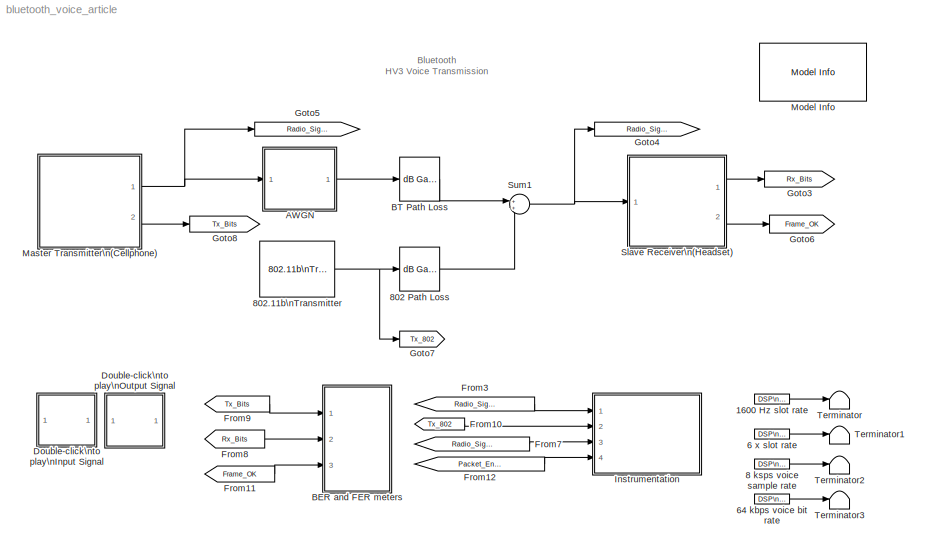
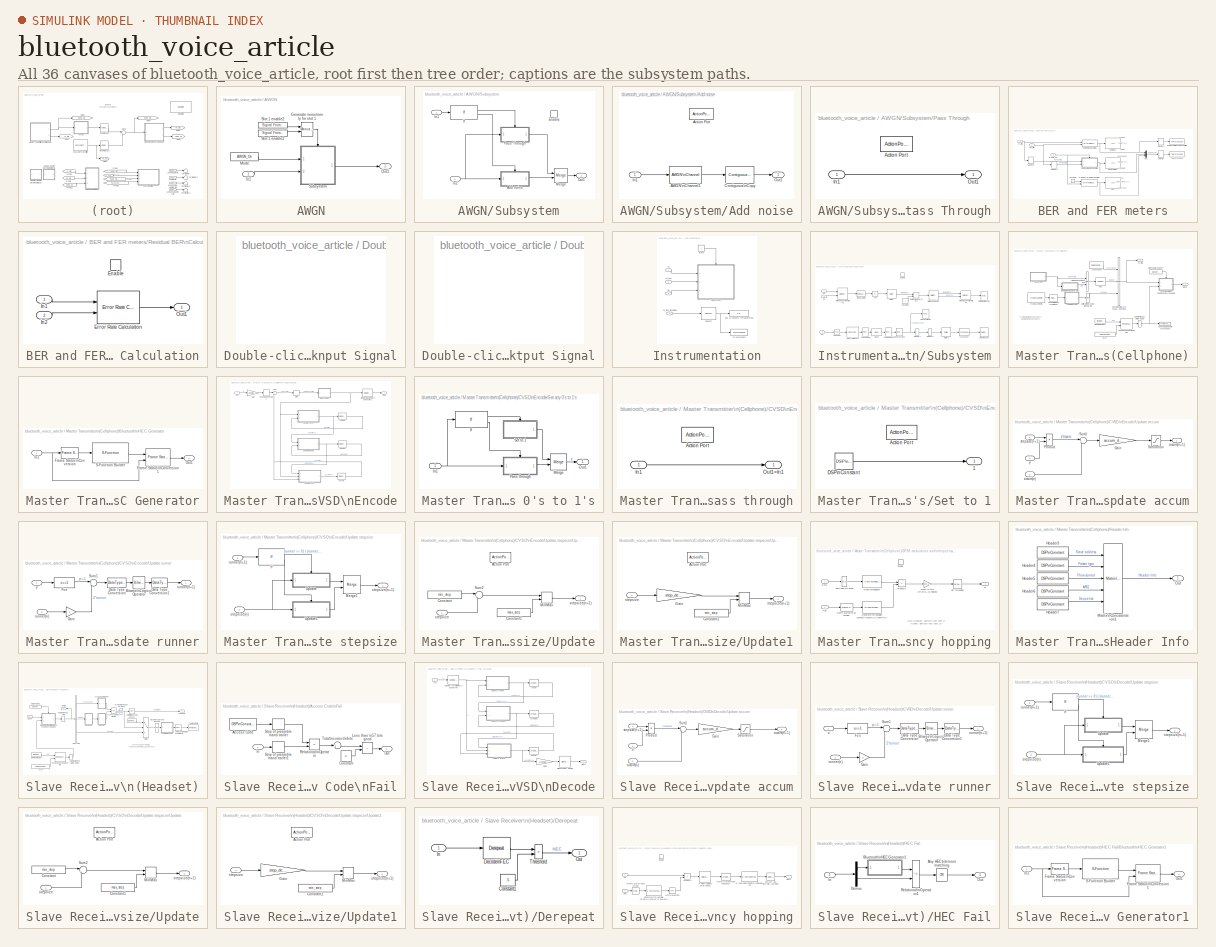
[diagram: thumbnail index - all 36 canvases of the model, root first then tree order]
MODEL bluetooth_voice_article
KIND model
CONFIG AbsTol = auto
CONFIG FixedStep = auto
CONFIG MaxStep = auto
CONFIG MinStep = auto
CONFIG PreLoadFcn = bluetooth_init;
CONFIG RelTol = 1e-3
CONFIG Solver = VariableStepDiscrete
CONFIG SolverMode = Auto
CONFIG StartTime = 0.0
CONFIG StopFcn = ratio=sum((hops>=29) & (hops<=49))/length(hops)
CONFIG StopTime = 2.7
BLOCK [Reference] 1600 Hz slot rate  REF=dspsrcs3/DSP\nConstant
  FramebasedOutput = off
  InterpretAs1D = off
  Ports = [0, 1]
  SampleMode = Discrete
  SourceBlock = dspsrcs3/DSP\nConstant
  SourceType = DSP Constant
  Ts = 1/1600
  Value = 1
BLOCK [Reference] 6 x slot rate  REF=dspsrcs3/DSP\nConstant
  FramebasedOutput = off
  InterpretAs1D = off
  Ports = [0, 1]
  SampleMode = Discrete
  SourceBlock = dspsrcs3/DSP\nConstant
  SourceType = DSP Constant
  Ts = 6/1600
  Value = 1
BLOCK [Reference] 64 kbps voice bit rate  REF=dspsrcs3/DSP\nConstant
  FramebasedOutput = off
  InterpretAs1D = off
  Ports = [0, 1]
  SampleMode = Discrete
  SourceBlock = dspsrcs3/DSP\nConstant
  SourceType = DSP Constant
  Ts = 1/64000
  Value = 1
BLOCK [Reference] 8 ksps voice sample rate  REF=dspsrcs3/DSP\nConstant
  FramebasedOutput = off
  InterpretAs1D = off
  Ports = [0, 1]
  SampleMode = Discrete
  SourceBlock = dspsrcs3/DSP\nConstant
  SourceType = DSP Constant
  Ts = 1/8000
  Value = 1
BLOCK [Reference] 802 Path Loss  REF=dspmathops/dB Gain
  Gain = g
  Ports = [1, 1]
  SourceBlock = dspmathops/dB Gain
  SourceType = dB Gain
  dB = -40
  intype = Amplitude
BLOCK [Reference] 802.11b\nTransmitter  REF=bluetooth_lib/802.11b\nTransmitter  (lib defined in mdl_445d02070f23, mdl_ddbc2443d151)
  Freq_Number = 39
  On = on
  Ports = [0, 1]
  SourceBlock = bluetooth_lib/802.11b\nTransmitter
  awgn_seed = awgn_802_seed
  m = 1e-3
  power = 1
  rate = 200
  rate_seed = rate_802_seed
  v = 0
BLOCK [SubSystem] AWGN
  MaskCallbackString = ||||
  MaskDisplay = disp(['AWGN is ' Name])
  MaskEnableString = on,on,on,on,on
  MaskIconFrame = on
  MaskIconOpaque = on
  MaskIconRotate = none
  MaskIconUnits = autoscale
  MaskInitialization = if AWGN_On==1\n   Name='On';\nelse\n  Name='Off';\nend;\n
  MaskPromptString = Turn on AWGN|Es/No|Input Power|Symbol Period|Seed
  MaskStyleString = checkbox,edit,edit,edit,edit
  MaskToolTipString = on,on,on,on,on
  MaskTunableValueString = on,on,on,on,on
  MaskType = Optional channel
  MaskValueString = on|5|.001|1e-6|awgn_channel_seed
  MaskVariableAliases = ,,,,
  MaskVariables = AWGN_On=@1;EsNo=@2;Power=@3;Symbol_Period=@4;seed=@5;
  MaskVisibilityString = on,on,on,on,on
  Ports = [1, 1]
  RTWFcnNameOpts = Auto
  RTWFileNameOpts = Auto
  RTWSystemCode = Auto
  ShowPortLabels = on
  TreatAsAtomicUnit = on
BLOCK [Reference] AWGN/Generate noise\nonly for slot 1  REF=simulink3/Nonlinear/Manual Switch
  Ports = [2, 1]
  SourceBlock = simulink3/Nonlinear/Manual Switch
  SourceType = Manual Switch
  action = 0
  sw = 0
BLOCK [Inport] AWGN/In1
  Interpolate = on
  LatchInput = off
  Port = 1
BLOCK [Constant] AWGN/Mode
  Value = AWGN_On
  VectorParams1D = on
BLOCK [Outport] AWGN/Out1
  InitialOutput = 0
  OutputWhenDisabled = held
  Port = 1
BLOCK [Reference] AWGN/Slot 1 enable2  REF=dspsrcs3/Signal From\nWorkspace
  OutputAfterFinalValue = Cyclic Repetition
  Ports = [0, 1]
  SourceBlock = dspsrcs3/Signal From\nWorkspace
  SourceType = Signal From Workspace
  Ts = 625e-6
  X = [1 0 0 0 0 0]
  nsamps = 1
BLOCK [Reference] AWGN/Slot 1 enable3  REF=dspsrcs3/Signal From\nWorkspace
  OutputAfterFinalValue = Cyclic Repetition
  Ports = [0, 1]
  SourceBlock = dspsrcs3/Signal From\nWorkspace
  SourceType = Signal From Workspace
  Ts = 625e-6
  X = [1 1 1 1 1 1 ]
  nsamps = 1
BLOCK [SubSystem] AWGN/Subsystem
  Ports = [2, 1, 1]
  RTWFcnNameOpts = Auto
  RTWFileNameOpts = Auto
  RTWSystemCode = Auto
  ShowPortLabels = on
  TreatAsAtomicUnit = on
BLOCK [SubSystem] AWGN/Subsystem/Add noise
  Ports = [1, 1, 0, 0, 0, 0, 0, 1]
  RTWFcnNameOpts = Auto
  RTWFileNameOpts = Auto
  RTWSystemCode = Auto
  ShowPortLabels = on
  TreatAsAtomicUnit = on
BLOCK [Reference] AWGN/Subsystem/Add noise/AWGN\nChannel1  REF=commchan2/AWGN\nChannel
  EsNodB = EsNo
  Ports = [1, 1]
  Ps = Power
  SNRdB = 10
  SourceBlock = commchan2/AWGN\nChannel
  SourceType = AWGN Channel
  Tsym = Symbol_Period
  noiseMode = Signal to noise ratio  (Es/No)
  seed = seed
  variance = 1
BLOCK [ActionPort] AWGN/Subsystem/Add noise/Action Port
  ActionType = else
  InitializeStates = held
BLOCK [Reference] AWGN/Subsystem/Add noise/Contiguous\nCopy  REF=dspsigattribs/Contiguous\nCopy
  Ports = [1, 1]
  SourceBlock = dspsigattribs/Contiguous\nCopy
  SourceType = Contiguous Copy
BLOCK [Inport] AWGN/Subsystem/Add noise/In1
  Interpolate = on
  LatchInput = off
  Port = 1
BLOCK [Outport] AWGN/Subsystem/Add noise/Out1
  InitialOutput = []
  OutputWhenDisabled = held
  Port = 1
BLOCK [EnablePort] AWGN/Subsystem/Enable
  Ports = []
  ShowOutputPort = off
  StatesWhenEnabling = held
BLOCK [If] AWGN/Subsystem/If
  IfExpression = u1 == 0
  NumInputs = 1
  Ports = [1, 2]
  ShowElse = on
BLOCK [Inport] AWGN/Subsystem/In1
  Interpolate = on
  LatchInput = off
  Port = 1
BLOCK [Inport] AWGN/Subsystem/In2
  Interpolate = on
  LatchInput = off
  Port = 2
BLOCK [Merge] AWGN/Subsystem/Merge
  AllowUnequalInputPortWidths = off
  InitialOutput = []
  InputPortOffsets = []
  Inputs = 2
  Ports = [2, 1]
BLOCK [Outport] AWGN/Subsystem/Out1
  InitialOutput = []
  OutputWhenDisabled = held
  Port = 1
BLOCK [SubSystem] AWGN/Subsystem/Pass Through
  Ports = [1, 1, 0, 0, 0, 0, 0, 1]
  RTWFcnNameOpts = Auto
  RTWFileNameOpts = Auto
  RTWSystemCode = Auto
  ShowPortLabels = on
  TreatAsAtomicUnit = on
BLOCK [ActionPort] AWGN/Subsystem/Pass Through/Action Port
  ActionType = then
  InitializeStates = held
BLOCK [Inport] AWGN/Subsystem/Pass Through/In1
  Interpolate = on
  LatchInput = off
  Port = 1
BLOCK [Outport] AWGN/Subsystem/Pass Through/Out1
  InitialOutput = []
  OutputWhenDisabled = held
  Port = 1
BLOCK [SubSystem] BER and FER meters
  MaskIconFrame = on
  MaskIconOpaque = on
  MaskIconRotate = none
  MaskIconUnits = autoscale
  Ports = [3]
  RTWFcnNameOpts = Auto
  RTWFileNameOpts = Auto
  RTWSystemCode = Auto
  ShowPortLabels = on
  TreatAsAtomicUnit = off
BLOCK [Constant] BER and FER meters/Constant1
  Value = 1
  VectorParams1D = on
BLOCK [Display] BER and FER meters/FER
  Decimation = 1
  Floating = off
  Format = short
  Ports = [1]
  SampleTime = -1
BLOCK [Reference] BER and FER meters/Frame Error Rate \nCalculation  REF=commsink2/Error Rate Calculation
  N = 0
  PMode = Port
  Ports = [2, 1]
  RsMode2 = off
  SourceBlock = commsink2/Error Rate Calculation
  SourceType = Error Rate Calculation
  WsName = ErrorVec
  cp_mode = Entire frame
  maxBits = 1e6
  numErr = 100
  st_delay = 0
  stop = off
  subframe = []
BLOCK [Inport] BER and FER meters/Frame_OK
  Interpolate = on
  LatchInput = off
  Port = 3
BLOCK [Mux] BER and FER meters/Mux
  DisplayOption = bar
  Inputs = 3
  Ports = [3, 1]
BLOCK [ToWorkspace] BER and FER meters/Number of bits\nraw transmitted
  Decimation = 1
  MaxDataPoints = 1
  SampleTime = -1
  SaveFormat = Array
  VariableName = Num_bits_Tx
BLOCK [Display] BER and FER meters/Raw BER
  Decimation = 1
  Floating = off
  Format = short
  Ports = [1]
  SampleTime = -1
BLOCK [Reference] BER and FER meters/Raw BER\nCalculation  REF=commsink2/Error Rate Calculation
  N = 0
  PMode = Port
  Ports = [2, 1]
  RsMode2 = off
  SourceBlock = commsink2/Error Rate Calculation
  SourceType = Error Rate Calculation
  WsName = ErrorVec
  cp_mode = Entire frame
  maxBits = 1e6
  numErr = 100
  st_delay = 0
  stop = off
  subframe = []
BLOCK [Display] BER and FER meters/Residual BER
  Decimation = 1
  Floating = off
  Format = short
  Ports = [1]
  SampleTime = -1
BLOCK [SubSystem] BER and FER meters/Residual BER\nCalculation
  Ports = [2, 1, 1]
  RTWFcnNameOpts = Auto
  RTWFileNameOpts = Auto
  RTWSystemCode = Auto
  ShowPortLabels = on
  TreatAsAtomicUnit = on
BLOCK [EnablePort] BER and FER meters/Residual BER\nCalculation/Enable
  Ports = []
  ShowOutputPort = off
  StatesWhenEnabling = held
BLOCK [Reference] BER and FER meters/Residual BER\nCalculation/Error Rate Calculation  REF=commsink2/Error Rate Calculation
  N = 0
  PMode = Port
  Ports = [2, 1]
  RsMode2 = off
  SourceBlock = commsink2/Error Rate Calculation
  SourceType = Error Rate Calculation
  WsName = ErrorVec
  cp_mode = Entire frame
  maxBits = 1e6
  numErr = 100
  st_delay = 0
  stop = off
  subframe = []
BLOCK [Inport] BER and FER meters/Residual BER\nCalculation/In1
  Interpolate = on
  LatchInput = off
  Port = 1
BLOCK [Inport] BER and FER meters/Residual BER\nCalculation/In2
  Interpolate = on
  LatchInput = off
  Port = 2
BLOCK [Outport] BER and FER meters/Residual BER\nCalculation/Out1
  InitialOutput = []
  OutputWhenDisabled = held
  Port = 1
BLOCK [Inport] BER and FER meters/Rx_Bits
  Interpolate = on
  LatchInput = off
  Port = 2
BLOCK [Selector] BER and FER meters/Selector
  ColumnSrc = Internal
  Columns = 1
  ElementSrc = Internal
  Elements = [1 4 7]
  InputPortWidth = 9
  InputType = Vector
  Ports = [1, 1]
  RowSrc = Internal
  Rows = 1
BLOCK [Selector] BER and FER meters/Selector1
  ColumnSrc = Internal
  Columns = 1
  ElementSrc = Internal
  Elements = [3]
  InputPortWidth = 3
  InputType = Vector
  Ports = [1, 1]
  RowSrc = Internal
  Rows = 1
BLOCK [Selector] BER and FER meters/Selector2
  ColumnSrc = Internal
  Columns = 1
  ElementSrc = Internal
  Elements = [127:366]
  InputPortWidth = 366
  InputType = Vector
  Ports = [1, 1]
  RowSrc = Internal
  Rows = 1
BLOCK [Selector] BER and FER meters/Selector3
  ColumnSrc = Internal
  Columns = 1
  ElementSrc = Internal
  Elements = [127:366]
  InputPortWidth = 366
  InputType = Vector
  Ports = [1, 1]
  RowSrc = Internal
  Rows = 1
BLOCK [ToWorkspace] BER and FER meters/To Workspace
  Decimation = 1
  MaxDataPoints = 1
  SampleTime = -1
  SaveFormat = Array
  VariableName = BER_Results
BLOCK [Inport] BER and FER meters/Tx_Bits
  Interpolate = on
  LatchInput = off
  Port = 1
BLOCK [Reference] BT Path Loss  REF=dspmathops/dB Gain
  Gain = g
  Ports = [1, 1]
  SourceBlock = dspmathops/dB Gain
  SourceType = dB Gain
  dB = -40
  intype = Amplitude
BLOCK [SubSystem] Double-click\nto play\nInput Signal
  MaskDisplay = patch(x1,y1,[1 1 1]*.5);\npatch(x2,y2);\nplot(x,y); plot(x1,y1)
  MaskIconFrame = on
  MaskIconOpaque = on
  MaskIconRotate = none
  MaskIconUnits = autoscale
  MaskInitialization = [x,y,x1,y1,x2,y2] = dspblkwao2('icon');
  MaskType = Plot histogram
  OpenFcn = [Input_Wave,Input_Fs]=wavread('Input.wav');sound(Input_Wave,Input_Fs);
  Ports = []
  RTWFcnNameOpts = Auto
  RTWFileNameOpts = Auto
  RTWSystemCode = Auto
  ShowPortLabels = on
  TreatAsAtomicUnit = off
BLOCK [SubSystem] Double-click\nto play\nOutput Signal
  MaskDisplay = patch(x1,y1,[1 1 1]*.5);\npatch(x2,y2);\nplot(x,y); plot(x1,y1)
  MaskIconFrame = on
  MaskIconOpaque = on
  MaskIconRotate = none
  MaskIconUnits = autoscale
  MaskInitialization = [x,y,x1,y1,x2,y2] = dspblkwao2('icon');
  MaskType = Plot histogram
  OpenFcn = [Output_Wave,Output_Fs]=wavread('Output.wav');sound(Output_Wave,Output_Fs);
  Ports = []
  RTWFcnNameOpts = Auto
  RTWFileNameOpts = Auto
  RTWSystemCode = Auto
  ShowPortLabels = on
  TreatAsAtomicUnit = off
BLOCK [From] From10
  CloseFcn = tagdialog Close
  GotoTag = Tx_802
BLOCK [From] From11
  CloseFcn = tagdialog Close
  GotoTag = Frame_OK
BLOCK [From] From12
  CloseFcn = tagdialog Close
  GotoTag = Packet_Envelope_802
BLOCK [From] From3
  CloseFcn = tagdialog Close
  GotoTag = Radio_Signal_Tx
BLOCK [From] From7
  CloseFcn = tagdialog Close
  GotoTag = Radio_Signal_Rx
BLOCK [From] From8
  CloseFcn = tagdialog Close
  GotoTag = Rx_Bits
BLOCK [From] From9
  CloseFcn = tagdialog Close
  GotoTag = Tx_Bits
BLOCK [Goto] Goto3
  GotoTag = Rx_Bits
  TagVisibility = global
BLOCK [Goto] Goto4
  GotoTag = Radio_Signal_Rx
  TagVisibility = global
BLOCK [Goto] Goto5
  GotoTag = Radio_Signal_Tx
  TagVisibility = global
BLOCK [Goto] Goto6
  GotoTag = Frame_OK
  TagVisibility = global
BLOCK [Goto] Goto7
  GotoTag = Tx_802
  TagVisibility = global
BLOCK [Goto] Goto8
  GotoTag = Tx_Bits
  TagVisibility = global
BLOCK [SubSystem] Instrumentation
  MaskCallbackString = |
  MaskDisplay = disp(string);
  MaskEnableString = on,on
  MaskIconFrame = on
  MaskIconOpaque = on
  MaskIconRotate = none
  MaskIconUnits = autoscale
  MaskInitialization = if strcmp(On,'on')\n  string='Instrumentation\\nis On\\n(Double-Click\\n to Toggle)\\n ';\n  set_param([gcb,'/State'],'Value','1');\nelse\n  string='Instrumentation\\nis Off\\n(Double-Click\\n to Toggle)\\n ';\n  set_param([gcb,'/State'],'Value','0');\nend\n
  MaskPromptString = On|Off
  MaskStyleString = edit,edit
  MaskToolTipString = on,on
  MaskTunableValueString = on,on
  MaskType = Instrumentation
  MaskValueString = on|off
  MaskVariableAliases = ,
  MaskVariables = On=&1;Off=&2;
  MaskVisibilityString = on,on
  OpenFcn = temp=get_param(gcb,'On');set_param(gcb,'On', get_param(gcb,'Off'));set_param(gcb,'Off', temp);
  Ports = [4]
  RTWFcnNameOpts = Auto
  RTWFileNameOpts = Auto
  RTWSystemCode = Auto
  ShowPortLabels = on
  TreatAsAtomicUnit = on
BLOCK [Display] Instrumentation/802.11 Packets \nTransmitted
  Decimation = 1
  Floating = off
  Format = short
  Ports = [1]
  SampleTime = -1
BLOCK [Reference] Instrumentation/Counter  REF=dspswit3/Counter
  CountEvent = Rising edge
  CounterSize = User defined
  Direction = Up
  HitValue = 32
  InitialCount = 0
  MaxCount = 1000
  Output = Count
  Ports = [1, 1]
  ResetInput = off
  SamplesPerFrame = 1
  SourceBlock = dspswit3/Counter
  SourceType = Counter
  Ts = 1
BLOCK [Inport] Instrumentation/Rx
  Interpolate = on
  LatchInput = off
  Port = 3
BLOCK [Constant] Instrumentation/State
  Value = 1
  VectorParams1D = on
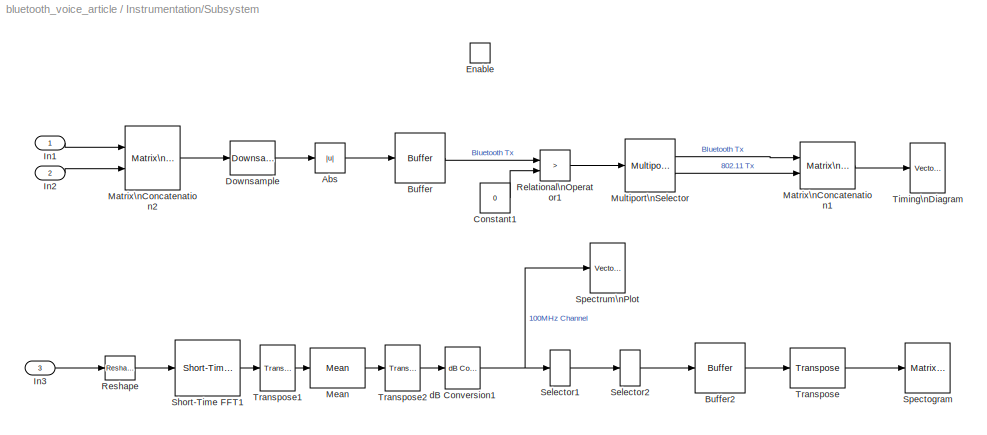
BLOCK [SubSystem] Instrumentation/Subsystem
  Ports = [3, 0, 1]
  RTWFcnNameOpts = Auto
  RTWFileNameOpts = Auto
  RTWSystemCode = Auto
  ShowPortLabels = on
  TreatAsAtomicUnit = on
BLOCK [Abs] Instrumentation/Subsystem/Abs
  SaturateOnIntegerOverflow = on
BLOCK [Reference] Instrumentation/Subsystem/Buffer  REF=dspbuff3/Buffer
  N = 60*500
  Ports = [1, 1]
  SourceBlock = dspbuff3/Buffer
  SourceType = Buffer
  V = 59*500
  ic = 0
BLOCK [Reference] Instrumentation/Subsystem/Buffer2  REF=dspbuff3/Buffer
  N = 60
  Ports = [1, 1]
  SourceBlock = dspbuff3/Buffer
  SourceType = Buffer
  V = 59
  ic = -70
BLOCK [Constant] Instrumentation/Subsystem/Constant1
  Value = 0
  VectorParams1D = on
BLOCK [Reference] Instrumentation/Subsystem/Downsample  REF=dspsigops/Downsample
  N = 125
  Ports = [1, 1]
  SourceBlock = dspsigops/Downsample
  SourceType = Downsample
  fmode = Maintain input frame rate
  ic = 0
  phase = 0
  smode = Allow multirate
BLOCK [EnablePort] Instrumentation/Subsystem/Enable
  Ports = []
  ShowOutputPort = off
  StatesWhenEnabling = held
BLOCK [Inport] Instrumentation/Subsystem/In1
  Interpolate = on
  LatchInput = off
  Port = 1
BLOCK [Inport] Instrumentation/Subsystem/In2
  Interpolate = on
  LatchInput = off
  Port = 2
BLOCK [Inport] Instrumentation/Subsystem/In3
  Interpolate = on
  LatchInput = off
  Port = 3
BLOCK [Reference] Instrumentation/Subsystem/Matrix\nConcatenation1  REF=simulink3/Signals\n& Systems/Matrix\nConcatenation
  Ports = [2, 1]
  SourceBlock = simulink3/Signals\n& Systems/Matrix\nConcatenation
  SourceType = Matrix Concatenation
  catMethod = Horizontal
  numInports = 2
BLOCK [Reference] Instrumentation/Subsystem/Matrix\nConcatenation2  REF=simulink3/Signals\n& Systems/Matrix\nConcatenation
  Ports = [2, 1]
  SourceBlock = simulink3/Signals\n& Systems/Matrix\nConcatenation
  SourceType = Matrix Concatenation
  catMethod = Horizontal
  numInports = 2
BLOCK [Reference] Instrumentation/Subsystem/Mean  REF=dspstat3/Mean
  Ports = [1, 1]
  SourceBlock = dspstat3/Mean
  SourceType = Mean
  reset_popup = None
  run = off
BLOCK [Reference] Instrumentation/Subsystem/Multiport\nSelector  REF=dspindex/Multiport\nSelector
  Ports = [1, 2]
  SourceBlock = dspindex/Multiport\nSelector
  SourceType = Multiport Selector
  idxCellArray = { 1,2}
  idxErrMode = Clip Index
  rowsOrCols = Columns
BLOCK [RelationalOperator] Instrumentation/Subsystem/Relational\nOperator1
  Operator = >
BLOCK [Reference] Instrumentation/Subsystem/Reshape  REF=simulink3/Signals\n& Systems/Reshape
  OutputDimensionality = Customize
  OutputDimensions = [500,125]
  Ports = [1, 1]
  SourceBlock = simulink3/Signals\n& Systems/Reshape
  SourceType = Reshape
BLOCK [Selector] Instrumentation/Subsystem/Selector1
  ColumnSrc = Internal
  Columns = 1
  ElementSrc = Internal
  Elements = [257:512 1:256]
  InputPortWidth = 512
  InputType = Vector
  Ports = [1, 1]
  RowSrc = Internal
  Rows = 1
BLOCK [Selector] Instrumentation/Subsystem/Selector2
  ColumnSrc = Internal
  Columns = 1
  ElementSrc = Internal
  Elements = 7:506
  InputPortWidth = 512
  InputType = Vector
  Ports = [1, 1]
  RowSrc = Internal
  Rows = 1
BLOCK [Reference] Instrumentation/Subsystem/Short-Time FFT1  REF=dspspect3/Short-Time FFT
  Ports = [1, 1]
  Rs = 50
  SourceBlock = dspspect3/Short-Time FFT
  SourceType = Short-Time FFT
  beta = 5
  fftsize = 512
  inheritFFT = off
  navg = 1
  winsamp = Periodic
  wintype = Hanning
BLOCK [Reference] Instrumentation/Subsystem/Spectogram  REF=dspsnks3/Matrix\nViewer
  AxisColorbar = on
  AxisOrigin = Lower left corner
  AxisParams = on
  AxisZoom = on
  CMapStr = jet(256)
  FigPos = [65 269 688 127]
  ImageParams = on
  Ports = [1]
  SourceBlock = dspsnks3/Matrix\nViewer
  SourceType = Matrix Viewer
  XLabel = Time Index
  YLabel = Frequency Index
  YMax = -30
  YMin = -60
  ZLabel = dB Magnitude
BLOCK [Reference] Instrumentation/Subsystem/Spectrum\nPlot  REF=dspsnks3/Vector\nScope
  AxisGrid = on
  AxisLegend = on
  AxisProperties = off
  AxisZoom = off
  DisplayProperties = off
  Domain = Frequency
  FigPos = [2 605 774 120]
  FrameNumber = on
  HorizSpan = 1
  InheritXIncr = off
  LineProperties = off
  LineStyles = --
  Memory = off
  OpenScopeAtSimStart = on
  OpenScopeImmediately = off
  Ports = [1]
  ScopeProperties = on
  SourceBlock = dspsnks3/Vector\nScope
  SourceType = Vector Scope
  XIncr = 1e-8
  XLabel = Time
  XRange = [-Fs/2...Fs/2]
  XUnits = Hertz
  YLabel = Magnitude, dB
  YMax = -25.7732682054945
  YMin = -80.906815143504
  YUnits = Magnitude
BLOCK [Reference] Instrumentation/Subsystem/Timing\nDiagram  REF=dspsnks3/Vector\nScope
  AxisGrid = on
  AxisLegend = on
  AxisProperties = off
  AxisZoom = off
  DisplayProperties = off
  Domain = User-defined
  FigPos = [8 427 776 129]
  FrameNumber = on
  HorizSpan = 1
  InheritXIncr = off
  LineColors = [0 1 0]|[1 0 0]
  LineProperties = off
  LineStyles = -|-
  Memory = off
  OpenScopeAtSimStart = on
  OpenScopeImmediately = off
  Ports = [1]
  ScopeProperties = on
  SourceBlock = dspsnks3/Vector\nScope
  SourceType = Vector Scope
  XIncr = 125*1e-8
  XLabel = Time (s)
  XRange = [0...Fs/2]
  XUnits = Hertz
  YLabel = Amplitude
  YMax = 1.1
  YMin = 0
  YUnits = dB
BLOCK [Reference] Instrumentation/Subsystem/Transpose  REF=dspmtrx3/Transpose
  Hermitian = off
  Ports = [1, 1]
  SourceBlock = dspmtrx3/Transpose
  SourceType = Transpose
BLOCK [Reference] Instrumentation/Subsystem/Transpose1  REF=dspmtrx3/Transpose
  Hermitian = off
  Ports = [1, 1]
  SourceBlock = dspmtrx3/Transpose
  SourceType = Transpose
BLOCK [Reference] Instrumentation/Subsystem/Transpose2  REF=dspmtrx3/Transpose
  Hermitian = off
  Ports = [1, 1]
  SourceBlock = dspmtrx3/Transpose
  SourceType = Transpose
BLOCK [Reference] Instrumentation/Subsystem/dB Conversion1  REF=dspmathops/dB Conversion
  Ports = [1, 1]
  R = 1
  SourceBlock = dspmathops/dB Conversion
  SourceType = dB Conversion
  dBtype = dB
  fuzz = on
  intype = Power
BLOCK [ToWorkspace] Instrumentation/To Workspace
  Decimation = 1
  MaxDataPoints = 1
  SampleTime = -1
  SaveFormat = Array
  VariableName = Num_802_packets
BLOCK [Inport] Instrumentation/Tx
  Interpolate = on
  LatchInput = off
  Port = 1
BLOCK [Inport] Instrumentation/Tx_802
  Interpolate = on
  LatchInput = off
  Port = 2
BLOCK [Inport] Instrumentation/Tx_802 Envelope
  Interpolate = on
  LatchInput = off
  Port = 4
BLOCK [SubSystem] Master Transmitter\n(Cellphone)
  MaskDisplay = plot(0,0,100,100,[30,60,60,55,55,30,30],[10,10,90,90,70,70,10],[35,35,55,55,35],[64,45,45,64,64])
  MaskIconFrame = on
  MaskIconOpaque = on
  MaskIconRotate = none
  MaskIconUnits = autoscale
  Ports = [0, 2]
  RTWFcnNameOpts = Auto
  RTWFileNameOpts = Auto
  RTWSystemCode = Auto
  ShowPortLabels = on
  TreatAsAtomicUnit = off
BLOCK [Reference] Master Transmitter\n(Cellphone)/Access Code  REF=dspsrcs3/DSP\nConstant
  FramebasedOutput = on
  InterpretAs1D = off
  Ports = [0, 1]
  SampleMode = Discrete
  SourceBlock = dspsrcs3/DSP\nConstant
  SourceType = DSP Constant
  Ts = 30*(1/Input_Fs)
  Value = Access_Code
BLOCK [Reference] Master Transmitter\n(Cellphone)/Bluetooth\nClock  REF=bluetooth_lib/Bluetooth\nClock  (lib defined in mdl_445d02070f23, mdl_ddbc2443d151)
  Ports = [0, 1]
  SourceBlock = bluetooth_lib/Bluetooth\nClock
  SourceType = Bluetooth Clock
  Ts = (1/1600)/2
BLOCK [SubSystem] Master Transmitter\n(Cellphone)/Bluetooth\nHEC Generator
  MaskDescription = Compute the Bluetooth Header Error Check (HEC) as specified in section 5.4 of the Bluetooth specification.  The Upper Address Part (UAP) is used to initialize the state of the encoder.  The UAP is an 8-bit vector, LSB first.
  MaskDisplay = disp('Bluetooth\\nHEC Generator')
  MaskEnableString = on
  MaskIconFrame = on
  MaskIconOpaque = on
  MaskIconRotate = none
  MaskIconUnits = autoscale
  MaskPromptString = UAP:
  MaskStyleString = edit
  MaskToolTipString = on
  MaskTunableValueString = on
  MaskType = Bluetooth HEC Generator
  MaskValueString = [1 0 0 1 0 1 1 0]
  MaskVariables = uap=@1;
  MaskVisibilityString = on
  Ports = [1, 1]
  RTWFcnNameOpts = Auto
  RTWFileNameOpts = Auto
  RTWSystemCode = Auto
  ShowPortLabels = on
  TreatAsAtomicUnit = off
BLOCK [Reference] Master Transmitter\n(Cellphone)/Bluetooth\nHEC Generator/Frame Status\nConversion  REF=dspsigattribs/Frame Status\nConversion
  Ports = [1, 1]
  SourceBlock = dspsigattribs/Frame Status\nConversion
  SourceType = Frame Status Conversion
  growRefPort = off
  outframe = Sample-based
BLOCK [Reference] Master Transmitter\n(Cellphone)/Bluetooth\nHEC Generator/Frame Status\nConversion1  REF=dspsigattribs/Frame Status\nConversion
  Ports = [2, 1]
  SourceBlock = dspsigattribs/Frame Status\nConversion
  SourceType = Frame Status Conversion
  growRefPort = on
  outframe = Sample-based
BLOCK [Inport] Master Transmitter\n(Cellphone)/Bluetooth\nHEC Generator/In1
  Interpolate = on
  LatchInput = off
  Port = 1
BLOCK [Outport] Master Transmitter\n(Cellphone)/Bluetooth\nHEC Generator/Out1
  InitialOutput = []
  OutputWhenDisabled = held
  Port = 1
BLOCK [S-Function] Master Transmitter\n(Cellphone)/Bluetooth\nHEC Generator/S-Function Builder
  AncestorBlock = simulink3/Functions\n& Tables/Basic S-Function\nBuilder
  CopyFcn = set_param(gcb,'LinkStatus','none')
  FunctionName = scomdemohecgen
  MaskDisplay = plot(val(:,1),val(:,2))\ndisp(sys)
  MaskIconFrame = on
  MaskIconOpaque = on
  MaskIconRotate = none
  MaskIconUnits = normalized
  MaskInitialization = val = [[.9  0.75 0.75 1 1 .9 .9 1]',[1 1 0.75 0.75 .9 .9 1 .9]'];\nsys = get_param(gcb,'FunctionName');
  OpenFcn = sfunctionwizard(gcbh)
  Parameters = uap
  PortCounts = []
  Ports = [1, 1]
  SFunctionModules = scomdemohecgen_wrapper
  WizardData = DataTag0
BLOCK [Reference] Master Transmitter\n(Cellphone)/Buffer into\nFrames at\nSCO rate  REF=dspbuff3/Buffer
  N = 240
  Ports = [1, 1]
  SourceBlock = dspbuff3/Buffer
  SourceType = Buffer
  V = 0
  ic = One_Zero_Payload
BLOCK [SubSystem] Master Transmitter\n(Cellphone)/CVSD\nEncode
  MaskCallbackString = |||
  MaskDescription = Encode a 64 K samples per sec speech signal into a 64Kbps bit stream.
  MaskDisplay = disp('CVSD\\nEncode')
  MaskEnableString = on,on,on,on
  MaskIconFrame = on
  MaskIconOpaque = on
  MaskIconRotate = none
  MaskIconUnits = autoscale
  MaskInitialization = pos_accum_max = 2^15 - 1;\nneg_accum_max = -2^15 + 1;
  MaskPromptString = Minimum Step Size|Maximum Step Size|Accumulator Decay|Step Decay
  MaskStyleString = edit,edit,edit,edit
  MaskToolTipString = on,on,on,on
  MaskTunableValueString = on,on,on,on
  MaskType = CVSD Encoder
  MaskValueString = 10|1280|1-1/32|1-1/1024
  MaskVariableAliases = ,,,
  MaskVariables = min_step=@1;max_step=@2;accum_decay=@3;step_decay=@4;
  MaskVisibilityString = on,on,on,on
  Ports = [1, 1]
  RTWFcnNameOpts = Auto
  RTWFileNameOpts = Auto
  RTWSystemCode = Auto
  ShowPortLabels = on
  TreatAsAtomicUnit = off
BLOCK [Reference] Master Transmitter\n(Cellphone)/CVSD\nEncode/Bipolar to\nUnipolar\nConverter1  REF=commutil2/Bipolar to\nUnipolar\nConverter
  M = 2
  Ports = [1, 1]
  SourceBlock = commutil2/Bipolar to\nUnipolar\nConverter
  SourceType = Bipolar to Unipolar Converter
  polarity = Negative
BLOCK [Gain] Master Transmitter\n(Cellphone)/CVSD\nEncode/Gain
  Gain = 32768
  Multiplication = Element-wise(K.*u)
  SaturateOnIntegerOverflow = on
BLOCK [Inport] Master Transmitter\n(Cellphone)/CVSD\nEncode/In1
  Interpolate = on
  LatchInput = off
  Port = 1
BLOCK [Outport] Master Transmitter\n(Cellphone)/CVSD\nEncode/Out1
  InitialOutput = []
  OutputWhenDisabled = held
  Port = 1
BLOCK [Rounding] Master Transmitter\n(Cellphone)/CVSD\nEncode/Rounding\nFunction
  Operator = round
BLOCK [SubSystem] Master Transmitter\n(Cellphone)/CVSD\nEncode/Set any 0's to 1's
  Ports = [1, 1]
  RTWFcnNameOpts = Auto
  RTWFileNameOpts = Auto
  RTWSystemCode = Auto
  ShowPortLabels = on
  TreatAsAtomicUnit = off
BLOCK [If] Master Transmitter\n(Cellphone)/CVSD\nEncode/Set any 0's to 1's/If
  IfExpression = u1 ==0
  NumInputs = 1
  Ports = [1, 2]
  ShowElse = on
BLOCK [Inport] Master Transmitter\n(Cellphone)/CVSD\nEncode/Set any 0's to 1's/In1
  Interpolate = on
  LatchInput = off
  Port = 1
BLOCK [Merge] Master Transmitter\n(Cellphone)/CVSD\nEncode/Set any 0's to 1's/Merge
  AllowUnequalInputPortWidths = off
  InitialOutput = []
  InputPortOffsets = []
  Inputs = 2
  Ports = [2, 1]
BLOCK [Outport] Master Transmitter\n(Cellphone)/CVSD\nEncode/Set any 0's to 1's/Out1
  InitialOutput = []
  OutputWhenDisabled = held
  Port = 1
BLOCK [SubSystem] Master Transmitter\n(Cellphone)/CVSD\nEncode/Set any 0's to 1's/Pass through
  Ports = [1, 1, 0, 0, 0, 0, 0, 1]
  RTWFcnNameOpts = Auto
  RTWFileNameOpts = Auto
  RTWSystemCode = Auto
  ShowPortLabels = on
  TreatAsAtomicUnit = on
BLOCK [ActionPort] Master Transmitter\n(Cellphone)/CVSD\nEncode/Set any 0's to 1's/Pass through/Action Port
  ActionType = else
  InitializeStates = held
BLOCK [Inport] Master Transmitter\n(Cellphone)/CVSD\nEncode/Set any 0's to 1's/Pass through/In1
  Interpolate = on
  LatchInput = off
  Port = 1
BLOCK [Outport] Master Transmitter\n(Cellphone)/CVSD\nEncode/Set any 0's to 1's/Pass through/Out1=In1
  InitialOutput = []
  OutputWhenDisabled = held
  Port = 1
BLOCK [SubSystem] Master Transmitter\n(Cellphone)/CVSD\nEncode/Set any 0's to 1's/Set to 1
  Ports = [0, 1, 0, 0, 0, 0, 0, 1]
  RTWFcnNameOpts = Auto
  RTWFileNameOpts = Auto
  RTWSystemCode = Auto
  ShowPortLabels = on
  TreatAsAtomicUnit = on
BLOCK [Outport] Master Transmitter\n(Cellphone)/CVSD\nEncode/Set any 0's to 1's/Set to 1/1
  InitialOutput = []
  OutputWhenDisabled = held
  Port = 1
BLOCK [ActionPort] Master Transmitter\n(Cellphone)/CVSD\nEncode/Set any 0's to 1's/Set to 1/Action Port
  ActionType = then
  InitializeStates = held
BLOCK [Reference] Master Transmitter\n(Cellphone)/CVSD\nEncode/Set any 0's to 1's/Set to 1/DSP\nConstant  REF=dspsrcs3/DSP\nConstant
  FramebasedOutput = off
  InterpretAs1D = on
  Ports = [0, 1]
  SampleMode = Discrete
  SourceBlock = dspsrcs3/DSP\nConstant
  SourceType = DSP Constant
  Ts = 1/64000
  Value = 1
BLOCK [Signum] Master Transmitter\n(Cellphone)/CVSD\nEncode/Sign
BLOCK [Sum] Master Transmitter\n(Cellphone)/CVSD\nEncode/Sum
  IconShape = round
  Inputs = |+-
  Ports = [2, 1]
  SaturateOnIntegerOverflow = on
BLOCK [SubSystem] Master Transmitter\n(Cellphone)/CVSD\nEncode/Update accum
  Ports = [3, 1]
  RTWFcnNameOpts = Auto
  RTWFileNameOpts = Auto
  RTWSystemCode = Auto
  ShowPortLabels = on
  TreatAsAtomicUnit = off
BLOCK [Gain] Master Transmitter\n(Cellphone)/CVSD\nEncode/Update accum/Gain
  Gain = accum_decay
  Multiplication = Element-wise(K.*u)
  SaturateOnIntegerOverflow = on
BLOCK [Product] Master Transmitter\n(Cellphone)/CVSD\nEncode/Update accum/Product
  Inputs = 2
  Multiplication = Element-wise(.*)
  Ports = [2, 1]
  SaturateOnIntegerOverflow = on
BLOCK [Saturate] Master Transmitter\n(Cellphone)/CVSD\nEncode/Update accum/Saturation
  LinearizeAsGain = on
  LowerLimit = neg_accum_max
  UpperLimit = pos_accum_max
BLOCK [Sum] Master Transmitter\n(Cellphone)/CVSD\nEncode/Update accum/Sum1
  IconShape = round
  Inputs = |++
  Ports = [2, 1]
  SaturateOnIntegerOverflow = on
BLOCK [Inport] Master Transmitter\n(Cellphone)/CVSD\nEncode/Update accum/accum(n)
  Interpolate = on
  LatchInput = off
  Port = 3
BLOCK [Outport] Master Transmitter\n(Cellphone)/CVSD\nEncode/Update accum/accum(n+1)
  InitialOutput = []
  OutputWhenDisabled = held
  Port = 1
BLOCK [Inport] Master Transmitter\n(Cellphone)/CVSD\nEncode/Update accum/stepsize(n+1)
  Interpolate = on
  LatchInput = off
  Port = 1
BLOCK [Inport] Master Transmitter\n(Cellphone)/CVSD\nEncode/Update accum/y
  Interpolate = on
  LatchInput = off
  Port = 2
BLOCK [SubSystem] Master Transmitter\n(Cellphone)/CVSD\nEncode/Update runner
  Ports = [2, 1]
  RTWFcnNameOpts = Auto
  RTWFileNameOpts = Auto
  RTWSystemCode = Auto
  ShowPortLabels = on
  TreatAsAtomicUnit = off
BLOCK [Reference] Master Transmitter\n(Cellphone)/CVSD\nEncode/Update runner/Bitwise\nLogical Operator  REF=simulink3/Math/Bitwise\nLogical Operator
  Operand2 = 15
  Operator = AND
  Ports = [1, 1]
  SourceBlock = simulink3/Math/Bitwise\nLogical Operator
  SourceType = BitwiseOperator
BLOCK [DataTypeConversion] Master Transmitter\n(Cellphone)/CVSD\nEncode/Update runner/Data Type Conversion
  DataType = uint16
  SaturateOnIntegerOverflow = on
BLOCK [DataTypeConversion] Master Transmitter\n(Cellphone)/CVSD\nEncode/Update runner/Data Type Conversion1
  DataType = double
  SaturateOnIntegerOverflow = on
BLOCK [Fcn] Master Transmitter\n(Cellphone)/CVSD\nEncode/Update runner/Fcn
  Expr = u==1
BLOCK [Gain] Master Transmitter\n(Cellphone)/CVSD\nEncode/Update runner/Gain
  Gain = 2
  Multiplication = Element-wise(K.*u)
  SaturateOnIntegerOverflow = on
BLOCK [Sum] Master Transmitter\n(Cellphone)/CVSD\nEncode/Update runner/Sum1
  IconShape = round
  Inputs = |++
  Ports = [2, 1]
  SaturateOnIntegerOverflow = on
BLOCK [Inport] Master Transmitter\n(Cellphone)/CVSD\nEncode/Update runner/runner(n)
  Interpolate = on
  LatchInput = off
  Port = 2
BLOCK [Outport] Master Transmitter\n(Cellphone)/CVSD\nEncode/Update runner/runner(n+1)
  InitialOutput = []
  OutputWhenDisabled = held
  Port = 1
BLOCK [Inport] Master Transmitter\n(Cellphone)/CVSD\nEncode/Update runner/y
  Interpolate = on
  LatchInput = off
  Port = 1
BLOCK [SubSystem] Master Transmitter\n(Cellphone)/CVSD\nEncode/Update stepsize
  Ports = [2, 1]
  RTWFcnNameOpts = Auto
  RTWFileNameOpts = Auto
  RTWSystemCode = Auto
  ShowPortLabels = on
  TreatAsAtomicUnit = off
BLOCK [If] Master Transmitter\n(Cellphone)/CVSD\nEncode/Update stepsize/If
  IfExpression = (u1 == 0) | (u1== 15)
  NumInputs = 1
  Ports = [1, 2]
  ShowElse = on
BLOCK [Merge] Master Transmitter\n(Cellphone)/CVSD\nEncode/Update stepsize/Merge1
  AllowUnequalInputPortWidths = off
  InitialOutput = []
  InputPortOffsets = []
  Inputs = 2
  Ports = [2, 1]
BLOCK [SubSystem] Master Transmitter\n(Cellphone)/CVSD\nEncode/Update stepsize/Update
  Ports = [1, 1, 0, 0, 0, 0, 0, 1]
  RTWFcnNameOpts = Auto
  RTWFileNameOpts = Auto
  RTWSystemCode = Auto
  ShowPortLabels = on
  TreatAsAtomicUnit = on
BLOCK [ActionPort] Master Transmitter\n(Cellphone)/CVSD\nEncode/Update stepsize/Update/Action Port
  ActionType = then
  InitializeStates = held
BLOCK [Constant] Master Transmitter\n(Cellphone)/CVSD\nEncode/Update stepsize/Update/Constant
  Value = min_step
  VectorParams1D = on
BLOCK [Constant] Master Transmitter\n(Cellphone)/CVSD\nEncode/Update stepsize/Update/Constant1
  Value = max_step
  VectorParams1D = on
BLOCK [MinMax] Master Transmitter\n(Cellphone)/CVSD\nEncode/Update stepsize/Update/MinMax
  Function = min
  Inputs = 2
  Ports = [2, 1]
BLOCK [Sum] Master Transmitter\n(Cellphone)/CVSD\nEncode/Update stepsize/Update/Sum2
  IconShape = round
  Inputs = |++
  Ports = [2, 1]
  SaturateOnIntegerOverflow = on
BLOCK [Inport] Master Transmitter\n(Cellphone)/CVSD\nEncode/Update stepsize/Update/stepsize
  Interpolate = on
  LatchInput = off
  Port = 1
BLOCK [Outport] Master Transmitter\n(Cellphone)/CVSD\nEncode/Update stepsize/Update/stepsize(n+1)
  InitialOutput = []
  OutputWhenDisabled = held
  Port = 1
BLOCK [SubSystem] Master Transmitter\n(Cellphone)/CVSD\nEncode/Update stepsize/Update1
  Ports = [1, 1, 0, 0, 0, 0, 0, 1]
  RTWFcnNameOpts = Auto
  RTWFileNameOpts = Auto
  RTWSystemCode = Auto
  ShowPortLabels = on
  TreatAsAtomicUnit = on
BLOCK [ActionPort] Master Transmitter\n(Cellphone)/CVSD\nEncode/Update stepsize/Update1/Action Port
  ActionType = else
  InitializeStates = held
BLOCK [Constant] Master Transmitter\n(Cellphone)/CVSD\nEncode/Update stepsize/Update1/Constant1
  Value = min_step
  VectorParams1D = on
BLOCK [Gain] Master Transmitter\n(Cellphone)/CVSD\nEncode/Update stepsize/Update1/Gain
  Gain = step_decay
  Multiplication = Element-wise(K.*u)
  SaturateOnIntegerOverflow = on
BLOCK [MinMax] Master Transmitter\n(Cellphone)/CVSD\nEncode/Update stepsize/Update1/MinMax
  Function = max
  Inputs = 2
  Ports = [2, 1]
BLOCK [Inport] Master Transmitter\n(Cellphone)/CVSD\nEncode/Update stepsize/Update1/stepsize
  Interpolate = on
  LatchInput = off
  Port = 1
BLOCK [Outport] Master Transmitter\n(Cellphone)/CVSD\nEncode/Update stepsize/Update1/stepsize(n+1)
  InitialOutput = []
  OutputWhenDisabled = held
  Port = 1
BLOCK [Inport] Master Transmitter\n(Cellphone)/CVSD\nEncode/Update stepsize/runner(n+1)
  Interpolate = on
  LatchInput = off
  Port = 1
BLOCK [Inport] Master Transmitter\n(Cellphone)/CVSD\nEncode/Update stepsize/stepsize(n)
  Interpolate = on
  LatchInput = off
  Port = 2
BLOCK [Outport] Master Transmitter\n(Cellphone)/CVSD\nEncode/Update stepsize/stepsize(n+1)
  InitialOutput = []
  OutputWhenDisabled = held
  Port = 1
BLOCK [Reference] Master Transmitter\n(Cellphone)/CVSD\nEncode/accum  REF=dspsigops/Integer Delay
  Ports = [1, 1]
  SourceBlock = dspsigops/Integer Delay
  SourceType = Integer Delay
  delay = 1
  ic = 0
BLOCK [Reference] Master Transmitter\n(Cellphone)/CVSD\nEncode/runner  REF=dspsigops/Integer Delay
  Ports = [1, 1]
  SourceBlock = dspsigops/Integer Delay
  SourceType = Integer Delay
  delay = 1
  ic = 10
BLOCK [Reference] Master Transmitter\n(Cellphone)/CVSD\nEncode/stepsize  REF=dspsigops/Integer Delay
  Ports = [1, 1]
  SourceBlock = dspsigops/Integer Delay
  SourceType = Integer Delay
  delay = 1
  ic = min_step
BLOCK [Reference] Master Transmitter\n(Cellphone)/Concatenate\nAccess, Header\nand Payload  REF=simulink3/Signals\n& Systems/Matrix\nConcatenation
  Ports = [3, 1]
  SourceBlock = simulink3/Signals\n& Systems/Matrix\nConcatenation
  SourceType = Matrix Concatenation
  catMethod = Vertical
  numInports = 3
BLOCK [Reference] Master Transmitter\n(Cellphone)/FEC  REF=dspsigops/Repeat
  N = 3
  Ports = [1, 1]
  SourceBlock = dspsigops/Repeat
  SourceType = Repeat
  ic = 0
  mode = Maintain input frame rate
BLOCK [Reference] Master Transmitter\n(Cellphone)/From Wave\nFile  REF=dspsrcs3/From Wave\nFile
  FileName = Input.wav
  MinBufSize = 256
  Ports = [0, 1]
  SamplesPerFrame = 1
  SourceBlock = dspsrcs3/From Wave\nFile
  SourceType = From Wave File
BLOCK [SubSystem] Master Transmitter\n(Cellphone)/GFSK modulation and\nfrequency hopping
  Ports = [2, 1, 1]
  RTWFcnNameOpts = Auto
  RTWFileNameOpts = Auto
  RTWSystemCode = Auto
  ShowPortLabels = on
  TreatAsAtomicUnit = on
BLOCK [Inport] Master Transmitter\n(Cellphone)/GFSK modulation and\nfrequency hopping/Data
  Interpolate = on
  LatchInput = off
  Port = 1
  SampleTime = 625e-6
BLOCK [EnablePort] Master Transmitter\n(Cellphone)/GFSK modulation and\nfrequency hopping/Enable
  Ports = []
  ShowOutputPort = off
  StatesWhenEnabling = held
BLOCK [Reference] Master Transmitter\n(Cellphone)/GFSK modulation and\nfrequency hopping/Frame Status\nConversion  REF=dspsigattribs/Frame Status\nConversion
  Ports = [1, 1]
  SourceBlock = dspsigattribs/Frame Status\nConversion
  SourceType = Frame Status Conversion
  growRefPort = off
  outframe = Frame-based
BLOCK [Reference] Master Transmitter\n(Cellphone)/GFSK modulation and\nfrequency hopping/GFSK\nModulation  REF=commdigbbndcpm2/CPM\nModulator\nBaseband
  BT = 0.5
  Mnum = 2
  Ports = [1, 1]
  SourceBlock = commdigbbndcpm2/CPM\nModulator\nBaseband
  SourceType = CPM Modulator Baseband
  inputType = Bit
  mappingType = Binary
  modIdx = 0.32
  phaseOffset = 0
  preHistory = 1
  pulseLength = 1
  pulseShape = Gaussian
  rollOff = 0.2
  samplesPerSymbol = 100
BLOCK [Reference] Master Transmitter\n(Cellphone)/GFSK modulation and\nfrequency hopping/Generate\n79 possible carriers\n-39MHz to 39MHz\n  REF=commdigbbndfm2/M-FSK\nModulator\nBaseband
  Enc = Binary
  InType = Integer
  M = 79
  Ports = [1, 1]
  SourceBlock = commdigbbndfm2/M-FSK\nModulator\nBaseband
  SourceType = M-FSK Modulator Baseband
  freqSep = 1e6
  numSamp = 6.25e4
  phaseType = Continuous
BLOCK [Inport] Master Transmitter\n(Cellphone)/GFSK modulation and\nfrequency hopping/Hop
  Interpolate = on
  LatchInput = off
  Port = 2
  SampleTime = 625e-6
BLOCK [Gain] Master Transmitter\n(Cellphone)/GFSK modulation and\nfrequency hopping/Mask to turn off\ntransmitter after\ndata finished
  Gain = [ones(36600,1);zeros(62500-36600,1)]
  Multiplication = Element-wise(K.*u)
  SaturateOnIntegerOverflow = on
BLOCK [Product] Master Transmitter\n(Cellphone)/GFSK modulation and\nfrequency hopping/Product3
  Inputs = 2
  Multiplication = Element-wise(.*)
  Ports = [2, 1]
  SaturateOnIntegerOverflow = on
BLOCK [Reference] Master Transmitter\n(Cellphone)/GFSK modulation and\nfrequency hopping/Set to\n0dBm  REF=dspmathops/dB Gain
  Gain = g
  Ports = [1, 1]
  SourceBlock = dspmathops/dB Gain
  SourceType = dB Gain
  dB = -20
  intype = Amplitude
BLOCK [Outport] Master Transmitter\n(Cellphone)/GFSK modulation and\nfrequency hopping/Tx
  InitialOutput = 0
  OutputWhenDisabled = reset
  Port = 1
BLOCK [Reference] Master Transmitter\n(Cellphone)/GFSK modulation and\nfrequency hopping/Zero Pad\nto fill slot  REF=dspsigops/Zero Pad
  Ports = [1, 1]
  SourceBlock = dspsigops/Zero Pad
  SourceType = Zero Pad
  numOutCols = 1
  numOutRows = 625
  trunc_flag = None
  zpadAlong = Columns
BLOCK [SubSystem] Master Transmitter\n(Cellphone)/Header Info
  MaskDisplay = disp('Header Info')
  MaskIconFrame = on
  MaskIconOpaque = on
  MaskIconRotate = none
  MaskIconUnits = autoscale
  Ports = [0, 1]
  RTWFcnNameOpts = Auto
  RTWFileNameOpts = Auto
  RTWSystemCode = Auto
  ShowPortLabels = on
  TreatAsAtomicUnit = off
BLOCK [Reference] Master Transmitter\n(Cellphone)/Header Info/Header3  REF=dspsrcs3/DSP\nConstant
  FramebasedOutput = on
  InterpretAs1D = off
  Ports = [0, 1]
  SampleMode = Discrete
  SourceBlock = dspsrcs3/DSP\nConstant
  SourceType = DSP Constant
  Ts = 30*(1/Input_Fs)
  Value = Slave_Address
BLOCK [Reference] Master Transmitter\n(Cellphone)/Header Info/Header4  REF=dspsrcs3/DSP\nConstant
  FramebasedOutput = on
  InterpretAs1D = off
  Ports = [0, 1]
  SampleMode = Discrete
  SourceBlock = dspsrcs3/DSP\nConstant
  SourceType = DSP Constant
  Ts = 30*(1/Input_Fs)
  Value = Packet_Type
BLOCK [Reference] Master Transmitter\n(Cellphone)/Header Info/Header5  REF=dspsrcs3/DSP\nConstant
  FramebasedOutput = on
  InterpretAs1D = off
  Ports = [0, 1]
  SampleMode = Discrete
  SourceBlock = dspsrcs3/DSP\nConstant
  SourceType = DSP Constant
  Ts = 30*(1/Input_Fs)
  Value = Flow_Control
BLOCK [Reference] Master Transmitter\n(Cellphone)/Header Info/Header6  REF=dspsrcs3/DSP\nConstant
  FramebasedOutput = on
  InterpretAs1D = off
  Ports = [0, 1]
  SampleMode = Discrete
  SourceBlock = dspsrcs3/DSP\nConstant
  SourceType = DSP Constant
  Ts = 30*(1/Input_Fs)
  Value = ARQ
BLOCK [Reference] Master Transmitter\n(Cellphone)/Header Info/Header7  REF=dspsrcs3/DSP\nConstant
  FramebasedOutput = on
  InterpretAs1D = off
  Ports = [0, 1]
  SampleMode = Discrete
  SourceBlock = dspsrcs3/DSP\nConstant
  SourceType = DSP Constant
  Ts = 30*(1/Input_Fs)
  Value = Sequence
BLOCK [Reference] Master Transmitter\n(Cellphone)/Header Info/Matrix\nConcatenation1  REF=simulink3/Signals\n& Systems/Matrix\nConcatenation
  Ports = [5, 1]
  SourceBlock = simulink3/Signals\n& Systems/Matrix\nConcatenation
  SourceType = Matrix Concatenation
  catMethod = Vertical
  numInports = 5
BLOCK [Outport] Master Transmitter\n(Cellphone)/Header Info/Out
  InitialOutput = []
  OutputWhenDisabled = held
  Port = 1
BLOCK [Reference] Master Transmitter\n(Cellphone)/Hop Sequence\nGenerator  REF=bluetooth_lib/Hop Sequence\nGenerator  (lib defined in mdl_445d02070f23, mdl_ddbc2443d151)
  Hop_Mode = Connection State Hop Sequence
  Ports = [2, 1]
  SourceBlock = bluetooth_lib/Hop Sequence\nGenerator
  SourceType = Hop Sequence Generator
  fixed_hop_freq = fixed_hop_freq
  hop_seed = hop_seed
BLOCK [Reference] Master Transmitter\n(Cellphone)/Matrix\nConcatenation2  REF=simulink3/Signals\n& Systems/Matrix\nConcatenation
  Ports = [2, 1]
  SourceBlock = simulink3/Signals\n& Systems/Matrix\nConcatenation
  SourceType = Matrix Concatenation
  catMethod = Vertical
  numInports = 2
BLOCK [ZeroOrderHold] Master Transmitter\n(Cellphone)/Sample at\nSCO rate\n(6 slots)
  SampleTime = 6*625e-6
BLOCK [ToWorkspace] Master Transmitter\n(Cellphone)/Save actual hops \nto Workspace
  Decimation = 1
  MaxDataPoints = inf
  SampleTime = -1
  SaveFormat = Array
  VariableName = hops
BLOCK [Outport] Master Transmitter\n(Cellphone)/Signal
  InitialOutput = []
  OutputWhenDisabled = held
  Port = 1
BLOCK [Reference] Master Transmitter\n(Cellphone)/Slot 1 enable (page 44)  REF=dspsrcs3/Signal From\nWorkspace
  OutputAfterFinalValue = Cyclic Repetition
  Ports = [0, 1]
  SourceBlock = dspsrcs3/Signal From\nWorkspace
  SourceType = Signal From Workspace
  Ts = 625e-6
  X = [1 0 0 0 0 0]
  nsamps = 1
BLOCK [Outport] Master Transmitter\n(Cellphone)/Tx_Bits
  InitialOutput = []
  OutputWhenDisabled = held
  Port = 2
BLOCK [Reference] Master Transmitter\n(Cellphone)/ULAP  REF=dspsrcs3/DSP\nConstant
  FramebasedOutput = off
  InterpretAs1D = off
  Ports = [0, 1]
  SampleMode = Discrete
  SourceBlock = dspsrcs3/DSP\nConstant
  SourceType = DSP Constant
  Ts = (1/1600)/2
  Value = hex2dec('2a96ef25')
BLOCK [Reference] Master Transmitter\n(Cellphone)/Upsample to\n64 ksamples//s  REF=dspmlti3/FIR\nInterpolation
  L = 8
  Ports = [1, 1]
  SourceBlock = dspmlti3/FIR\nInterpolation
  SourceType = FIR Interpolation
  framing = Maintain input frame size
  h = interp_coeffs
  outputBufInitCond = 0
BLOCK [Reference] Model Info  REF=simulink3/Signals\n& Systems/Model Info
  BlockCM = none
  DisplayStringWithTags = Bluetooth Voice\n%<ModelVersion>\n
  Frame = on
  HorizontalTextAlignment = Center
  InitialBlockCM = none
  LeftAlignmentValue = 0.5
  MaskDisplayString = Bluetooth Voice\\n1.571\\n
  Ports = []
  SourceBlock = simulink3/Signals\n& Systems/Model Info
  SourceBlockDiagram = bluetooth_voice
  SourceType = CMBlock
  TagMaxNumber = 20
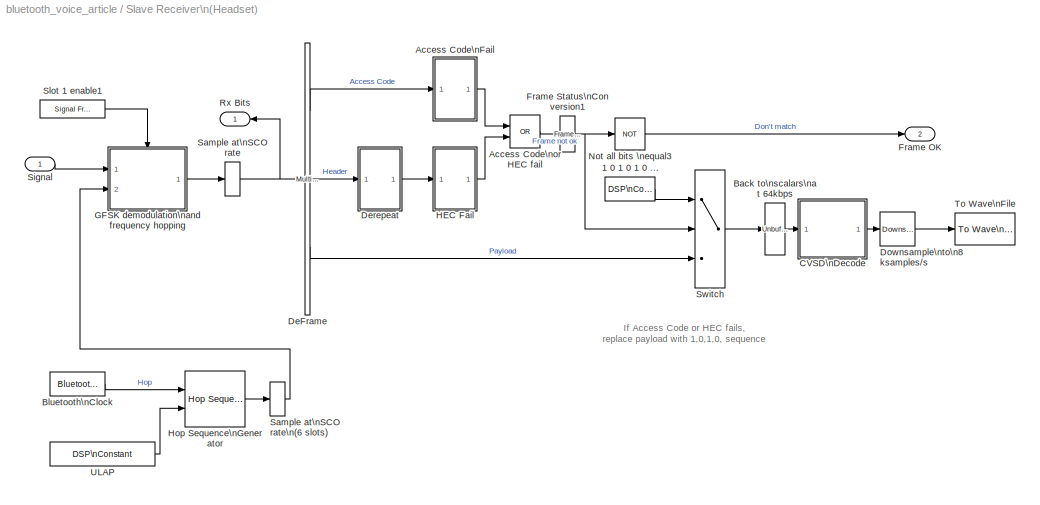
BLOCK [SubSystem] Slave Receiver\n(Headset)
  MaskDisplay = plot(15,5,95,80,[26, 28,35,44,58,85,87,92,86,59,46,46,38, 31, 27,26],[55,49,45,45,34,15,10,16,17,37,50,58,66,67,62,55],[32,34,37,42,46,46],[67,69,71,70,66,58],[27,25,24,21,23,26],[52,49,45,47,52,58],[35,38,40,42,44],[66,67,66,64,61],[34,32,38,40,34],[60,56,51,55,60])
  MaskIconFrame = on
  MaskIconOpaque = on
  MaskIconRotate = none
  MaskIconUnits = autoscale
  Ports = [1, 2]
  RTWFcnNameOpts = Auto
  RTWFileNameOpts = Auto
  RTWSystemCode = Auto
  ShowPortLabels = on
  TreatAsAtomicUnit = off
BLOCK [Reference] Slave Receiver\n(Headset)/1 0 1 0 1 0 ...  REF=dspsrcs3/DSP\nConstant
  FramebasedOutput = on
  InterpretAs1D = off
  Ports = [0, 1]
  SampleMode = Discrete
  SourceBlock = dspsrcs3/DSP\nConstant
  SourceType = DSP Constant
  Ts = 30*(1/Input_Fs)
  Value = One_Zero_Payload
BLOCK [SubSystem] Slave Receiver\n(Headset)/Access Code\nFail
  Ports = [1, 1]
  RTWFcnNameOpts = Auto
  RTWFileNameOpts = Auto
  RTWSystemCode = Auto
  ShowPortLabels = on
  TreatAsAtomicUnit = off
BLOCK [Reference] Slave Receiver\n(Headset)/Access Code\nFail/Access Code  REF=dspsrcs3/DSP\nConstant
  FramebasedOutput = on
  InterpretAs1D = off
  Ports = [0, 1]
  SampleMode = Discrete
  SourceBlock = dspsrcs3/DSP\nConstant
  SourceType = DSP Constant
  Ts = 30*(1/Input_Fs)
  Value = Access_Code
BLOCK [Constant] Slave Receiver\n(Headset)/Access Code\nFail/Constant
  Value = 57
  VectorParams1D = on
BLOCK [Inport] Slave Receiver\n(Headset)/Access Code\nFail/In
  Interpolate = on
  LatchInput = off
  Port = 1
BLOCK [RelationalOperator] Slave Receiver\n(Headset)/Access Code\nFail/Less than \n57 bits good
  Operator = <
BLOCK [Outport] Slave Receiver\n(Headset)/Access Code\nFail/Out
  InitialOutput = []
  OutputWhenDisabled = held
  Port = 1
BLOCK [RelationalOperator] Slave Receiver\n(Headset)/Access Code\nFail/Relational\nOperator
  Operator = ==
BLOCK [Selector] Slave Receiver\n(Headset)/Access Code\nFail/Strip of preamble \nand trailer
  ColumnSrc = Internal
  Columns = 1
  ElementSrc = Internal
  Elements = [5:68]
  InputPortWidth = 72
  InputType = Vector
  Ports = [1, 1]
  RowSrc = Internal
  Rows = 1
BLOCK [Selector] Slave Receiver\n(Headset)/Access Code\nFail/Strip of preamble \nand trailer1
  ColumnSrc = Internal
  Columns = 1
  ElementSrc = Internal
  Elements = [5:68]
  InputPortWidth = 72
  InputType = Vector
  Ports = [1, 1]
  RowSrc = Internal
  Rows = 1
BLOCK [Sum] Slave Receiver\n(Headset)/Access Code\nFail/Total\ncorrect\nbits
  IconShape = round
  Inputs = 1
  Ports = [1, 1]
  SaturateOnIntegerOverflow = on
BLOCK [Logic] Slave Receiver\n(Headset)/Access Code\nor HEC fail
  Inputs = 2
  Operator = OR
  Ports = [2, 1]
BLOCK [Reference] Slave Receiver\n(Headset)/Back to\nscalars\nat 64kbps  REF=dspbuff3/Unbuffer
  Ports = [1, 1]
  SourceBlock = dspbuff3/Unbuffer
  SourceType = Unbuffer
  ic = 0
BLOCK [Reference] Slave Receiver\n(Headset)/Bluetooth\nClock  REF=bluetooth_lib/Bluetooth\nClock  (lib defined in mdl_445d02070f23, mdl_ddbc2443d151)
  Ports = [0, 1]
  SourceBlock = bluetooth_lib/Bluetooth\nClock
  SourceType = Bluetooth Clock
  Ts = (1/1600)/2
BLOCK [SubSystem] Slave Receiver\n(Headset)/CVSD\nDecode
  MaskCallbackString = |||
  MaskDisplay = disp('CVSD\\nDecoder')
  MaskEnableString = on,on,on,on
  MaskIconFrame = on
  MaskIconOpaque = on
  MaskIconRotate = none
  MaskIconUnits = autoscale
  MaskInitialization = pos_accum_max = 2^15 - 1;\nneg_accum_max = -2^15 + 1;
  MaskPromptString = Minimum Step Size|Maximum Step Size|Accumulator Decay|Step Decay
  MaskStyleString = edit,edit,edit,edit
  MaskToolTipString = on,on,on,on
  MaskTunableValueString = on,on,on,on
  MaskType = CVSD Decoder
  MaskValueString = 10|1280|1-1/32|1-1/1024
  MaskVariableAliases = ,,,
  MaskVariables = min_step=@1;max_step=@2;accum_decay=@3;step_decay=@4;
  MaskVisibilityString = on,on,on,on
  Ports = [1, 1]
  RTWFcnNameOpts = Auto
  RTWFileNameOpts = Auto
  RTWSystemCode = Auto
  ShowPortLabels = on
  TreatAsAtomicUnit = on
BLOCK [Reference] Slave Receiver\n(Headset)/CVSD\nDecode/Digital\nFilter Design  REF=dsparch3/Digital\nFilter Design
  Ports = [1, 1]
  SourceBlock = dsparch3/Digital\nFilter Design
  SourceType = Digital Filter Design
  UserData = DataTag1
  UserDataPersistent = on
BLOCK [Gain] Slave Receiver\n(Headset)/CVSD\nDecode/Gain1
  Gain = 1/32768
  Multiplication = Element-wise(K.*u)
  SaturateOnIntegerOverflow = on
BLOCK [Inport] Slave Receiver\n(Headset)/CVSD\nDecode/In1
  Interpolate = on
  LatchInput = off
  Port = 1
BLOCK [Outport] Slave Receiver\n(Headset)/CVSD\nDecode/Out2
  InitialOutput = []
  OutputWhenDisabled = held
  Port = 1
BLOCK [Reference] Slave Receiver\n(Headset)/CVSD\nDecode/Unipolar to\nBipolar\nConverter  REF=commutil2/Unipolar to\nBipolar\nConverter
  M = 2
  Ports = [1, 1]
  SourceBlock = commutil2/Unipolar to\nBipolar\nConverter
  SourceType = Unipolar to Bipolar Converter
  polarity = Negative
BLOCK [SubSystem] Slave Receiver\n(Headset)/CVSD\nDecode/Update accum
  Ports = [3, 1]
  RTWFcnNameOpts = Auto
  RTWFileNameOpts = Auto
  RTWSystemCode = Auto
  ShowPortLabels = on
  TreatAsAtomicUnit = off
BLOCK [Gain] Slave Receiver\n(Headset)/CVSD\nDecode/Update accum/Gain
  Gain = accum_decay
  Multiplication = Element-wise(K.*u)
  SaturateOnIntegerOverflow = on
BLOCK [Product] Slave Receiver\n(Headset)/CVSD\nDecode/Update accum/Product
  Inputs = 2
  Multiplication = Element-wise(.*)
  Ports = [2, 1]
  SaturateOnIntegerOverflow = on
BLOCK [Saturate] Slave Receiver\n(Headset)/CVSD\nDecode/Update accum/Saturation
  LinearizeAsGain = on
  LowerLimit = neg_accum_max
  UpperLimit = pos_accum_max
BLOCK [Sum] Slave Receiver\n(Headset)/CVSD\nDecode/Update accum/Sum1
  IconShape = round
  Inputs = |++
  Ports = [2, 1]
  SaturateOnIntegerOverflow = on
BLOCK [Inport] Slave Receiver\n(Headset)/CVSD\nDecode/Update accum/accum(n)
  Interpolate = on
  LatchInput = off
  Port = 3
BLOCK [Outport] Slave Receiver\n(Headset)/CVSD\nDecode/Update accum/accum(n+1)
  InitialOutput = []
  OutputWhenDisabled = held
  Port = 1
BLOCK [Inport] Slave Receiver\n(Headset)/CVSD\nDecode/Update accum/stepsize(n+1)
  Interpolate = on
  LatchInput = off
  Port = 1
BLOCK [Inport] Slave Receiver\n(Headset)/CVSD\nDecode/Update accum/u
  Interpolate = on
  LatchInput = off
  Port = 2
BLOCK [SubSystem] Slave Receiver\n(Headset)/CVSD\nDecode/Update runner
  Ports = [2, 1]
  RTWFcnNameOpts = Auto
  RTWFileNameOpts = Auto
  RTWSystemCode = Auto
  ShowPortLabels = on
  TreatAsAtomicUnit = off
BLOCK [Reference] Slave Receiver\n(Headset)/CVSD\nDecode/Update runner/Bitwise\nLogical Operator  REF=simulink3/Math/Bitwise\nLogical Operator
  Operand2 = 15
  Operator = AND
  Ports = [1, 1]
  SourceBlock = simulink3/Math/Bitwise\nLogical Operator
  SourceType = BitwiseOperator
BLOCK [DataTypeConversion] Slave Receiver\n(Headset)/CVSD\nDecode/Update runner/Data Type Conversion
  DataType = uint16
  SaturateOnIntegerOverflow = on
BLOCK [DataTypeConversion] Slave Receiver\n(Headset)/CVSD\nDecode/Update runner/Data Type Conversion1
  DataType = double
  SaturateOnIntegerOverflow = on
BLOCK [Fcn] Slave Receiver\n(Headset)/CVSD\nDecode/Update runner/Fcn
  Expr = u==1
BLOCK [Gain] Slave Receiver\n(Headset)/CVSD\nDecode/Update runner/Gain
  Gain = 2
  Multiplication = Element-wise(K.*u)
  SaturateOnIntegerOverflow = on
BLOCK [Sum] Slave Receiver\n(Headset)/CVSD\nDecode/Update runner/Sum1
  IconShape = round
  Inputs = |++
  Ports = [2, 1]
  SaturateOnIntegerOverflow = on
BLOCK [Inport] Slave Receiver\n(Headset)/CVSD\nDecode/Update runner/runner(n)
  Interpolate = on
  LatchInput = off
  Port = 2
BLOCK [Outport] Slave Receiver\n(Headset)/CVSD\nDecode/Update runner/runner(n+1)
  InitialOutput = []
  OutputWhenDisabled = held
  Port = 1
BLOCK [Inport] Slave Receiver\n(Headset)/CVSD\nDecode/Update runner/u
  Interpolate = on
  LatchInput = off
  Port = 1
BLOCK [SubSystem] Slave Receiver\n(Headset)/CVSD\nDecode/Update stepsize
  Ports = [2, 1]
  RTWFcnNameOpts = Auto
  RTWFileNameOpts = Auto
  RTWSystemCode = Auto
  ShowPortLabels = on
  TreatAsAtomicUnit = off
BLOCK [If] Slave Receiver\n(Headset)/CVSD\nDecode/Update stepsize/If
  IfExpression = (u1 == 0) | (u1== 15)
  NumInputs = 1
  Ports = [1, 2]
  ShowElse = on
BLOCK [Merge] Slave Receiver\n(Headset)/CVSD\nDecode/Update stepsize/Merge1
  AllowUnequalInputPortWidths = off
  InitialOutput = []
  InputPortOffsets = []
  Inputs = 2
  Ports = [2, 1]
BLOCK [SubSystem] Slave Receiver\n(Headset)/CVSD\nDecode/Update stepsize/Update
  Ports = [1, 1, 0, 0, 0, 0, 0, 1]
  RTWFcnNameOpts = Auto
  RTWFileNameOpts = Auto
  RTWSystemCode = Auto
  ShowPortLabels = on
  TreatAsAtomicUnit = on
BLOCK [ActionPort] Slave Receiver\n(Headset)/CVSD\nDecode/Update stepsize/Update/Action Port
  ActionType = then
  InitializeStates = held
BLOCK [Constant] Slave Receiver\n(Headset)/CVSD\nDecode/Update stepsize/Update/Constant
  Value = min_step
  VectorParams1D = on
BLOCK [Constant] Slave Receiver\n(Headset)/CVSD\nDecode/Update stepsize/Update/Constant1
  Value = max_step
  VectorParams1D = on
BLOCK [MinMax] Slave Receiver\n(Headset)/CVSD\nDecode/Update stepsize/Update/MinMax
  Function = min
  Inputs = 2
  Ports = [2, 1]
BLOCK [Sum] Slave Receiver\n(Headset)/CVSD\nDecode/Update stepsize/Update/Sum2
  IconShape = round
  Inputs = |++
  Ports = [2, 1]
  SaturateOnIntegerOverflow = on
BLOCK [Inport] Slave Receiver\n(Headset)/CVSD\nDecode/Update stepsize/Update/stepsize
  Interpolate = on
  LatchInput = off
  Port = 1
BLOCK [Outport] Slave Receiver\n(Headset)/CVSD\nDecode/Update stepsize/Update/stepsize(n+1)
  InitialOutput = []
  OutputWhenDisabled = held
  Port = 1
BLOCK [SubSystem] Slave Receiver\n(Headset)/CVSD\nDecode/Update stepsize/Update1
  Ports = [1, 1, 0, 0, 0, 0, 0, 1]
  RTWFcnNameOpts = Auto
  RTWFileNameOpts = Auto
  RTWSystemCode = Auto
  ShowPortLabels = on
  TreatAsAtomicUnit = on
BLOCK [ActionPort] Slave Receiver\n(Headset)/CVSD\nDecode/Update stepsize/Update1/Action Port
  ActionType = else
  InitializeStates = held
BLOCK [Constant] Slave Receiver\n(Headset)/CVSD\nDecode/Update stepsize/Update1/Constant1
  Value = min_step
  VectorParams1D = on
BLOCK [Gain] Slave Receiver\n(Headset)/CVSD\nDecode/Update stepsize/Update1/Gain
  Gain = step_decay
  Multiplication = Element-wise(K.*u)
  SaturateOnIntegerOverflow = on
BLOCK [MinMax] Slave Receiver\n(Headset)/CVSD\nDecode/Update stepsize/Update1/MinMax
  Function = max
  Inputs = 2
  Ports = [2, 1]
BLOCK [Inport] Slave Receiver\n(Headset)/CVSD\nDecode/Update stepsize/Update1/stepsize
  Interpolate = on
  LatchInput = off
  Port = 1
BLOCK [Outport] Slave Receiver\n(Headset)/CVSD\nDecode/Update stepsize/Update1/stepsize(n+1)
  InitialOutput = []
  OutputWhenDisabled = held
  Port = 1
BLOCK [Inport] Slave Receiver\n(Headset)/CVSD\nDecode/Update stepsize/runner(n+1)
  Interpolate = on
  LatchInput = off
  Port = 1
BLOCK [Inport] Slave Receiver\n(Headset)/CVSD\nDecode/Update stepsize/stepsize(n)
  Interpolate = on
  LatchInput = off
  Port = 2
BLOCK [Outport] Slave Receiver\n(Headset)/CVSD\nDecode/Update stepsize/stepsize(n+1)
  InitialOutput = []
  OutputWhenDisabled = held
  Port = 1
BLOCK [Reference] Slave Receiver\n(Headset)/CVSD\nDecode/accum  REF=dspsigops/Integer Delay
  Ports = [1, 1]
  SourceBlock = dspsigops/Integer Delay
  SourceType = Integer Delay
  delay = 1
  ic = 0
BLOCK [Reference] Slave Receiver\n(Headset)/CVSD\nDecode/runner  REF=dspsigops/Integer Delay
  Ports = [1, 1]
  SourceBlock = dspsigops/Integer Delay
  SourceType = Integer Delay
  delay = 1
  ic = 10
BLOCK [Reference] Slave Receiver\n(Headset)/CVSD\nDecode/stepsize  REF=dspsigops/Integer Delay
  Ports = [1, 1]
  SourceBlock = dspsigops/Integer Delay
  SourceType = Integer Delay
  delay = 1
  ic = min_step
BLOCK [Reference] Slave Receiver\n(Headset)/DeFrame  REF=dspindex/Multiport\nSelector
  Ports = [1, 3]
  SourceBlock = dspindex/Multiport\nSelector
  SourceType = Multiport Selector
  idxCellArray = { 1:72, 73:126,127:366}
  idxErrMode = Clip Index
  rowsOrCols = Rows
BLOCK [SubSystem] Slave Receiver\n(Headset)/Derepeat
  Ports = [1, 1]
  RTWFcnNameOpts = Auto
  RTWFileNameOpts = Auto
  RTWSystemCode = Auto
  ShowPortLabels = on
  TreatAsAtomicUnit = off
BLOCK [Constant] Slave Receiver\n(Headset)/Derepeat/Constant1
  Value = .5
  VectorParams1D = on
BLOCK [Reference] Slave Receiver\n(Headset)/Derepeat/Decode\nFEC  REF=commsequence2/Derepeat
  N = 3
  Ports = [1, 1]
  SourceBlock = commsequence2/Derepeat
  SourceType = Derepeat
  ic = 0
  mode = Maintain input frame rate
BLOCK [Inport] Slave Receiver\n(Headset)/Derepeat/In
  Interpolate = on
  LatchInput = off
  Port = 1
BLOCK [Outport] Slave Receiver\n(Headset)/Derepeat/Out
  InitialOutput = []
  OutputWhenDisabled = held
  Port = 1
BLOCK [RelationalOperator] Slave Receiver\n(Headset)/Derepeat/Threshold
  Operator = >
BLOCK [Reference] Slave Receiver\n(Headset)/Downsample\nto\n8ksamples//s  REF=dspsigops/Downsample
  N = 8
  Ports = [1, 1]
  SourceBlock = dspsigops/Downsample
  SourceType = Downsample
  fmode = Maintain input frame size
  ic = 0
  phase = 0
  smode = Allow multirate
BLOCK [Outport] Slave Receiver\n(Headset)/Frame OK
  InitialOutput = []
  OutputWhenDisabled = held
  Port = 2
BLOCK [Reference] Slave Receiver\n(Headset)/Frame Status\nConversion1  REF=dspsigattribs/Frame Status\nConversion
  Ports = [1, 1]
  SourceBlock = dspsigattribs/Frame Status\nConversion
  SourceType = Frame Status Conversion
  growRefPort = off
  outframe = Sample-based
BLOCK [SubSystem] Slave Receiver\n(Headset)/GFSK demodulation\nand frequency hopping
  Ports = [2, 1, 1]
  RTWFcnNameOpts = Auto
  RTWFileNameOpts = Auto
  RTWSystemCode = Auto
  ShowPortLabels = on
  TreatAsAtomicUnit = on
BLOCK [Outport] Slave Receiver\n(Headset)/GFSK demodulation\nand frequency hopping/Data
  InitialOutput = 0
  OutputWhenDisabled = reset
  Port = 1
BLOCK [EnablePort] Slave Receiver\n(Headset)/GFSK demodulation\nand frequency hopping/Enable
  Ports = []
  ShowOutputPort = off
  StatesWhenEnabling = held
BLOCK [Selector] Slave Receiver\n(Headset)/GFSK demodulation\nand frequency hopping/Extract 366 bits\nwith one symbol delay
  ColumnSrc = Internal
  Columns = 1
  ElementSrc = Internal
  Elements = [2:367]
  InputPortWidth = 625
  InputType = Vector
  Ports = [1, 1]
  RowSrc = Internal
  Rows = 1
BLOCK [Reference] Slave Receiver\n(Headset)/GFSK demodulation\nand frequency hopping/Frame Status\nConversion  REF=dspsigattribs/Frame Status\nConversion
  Ports = [1, 1]
  SourceBlock = dspsigattribs/Frame Status\nConversion
  SourceType = Frame Status Conversion
  growRefPort = off
  outframe = Frame-based
BLOCK [Reference] Slave Receiver\n(Headset)/GFSK demodulation\nand frequency hopping/Generate\n79 possible carriers\n-39MHz to 39MHz\n  REF=commdigbbndfm2/M-FSK\nModulator\nBaseband
  Enc = Binary
  InType = Integer
  M = 79
  Ports = [1, 1]
  SourceBlock = commdigbbndfm2/M-FSK\nModulator\nBaseband
  SourceType = M-FSK Modulator Baseband
  freqSep = 1e6
  numSamp = 6.25e4
  phaseType = Continuous
BLOCK [Inport] Slave Receiver\n(Headset)/GFSK demodulation\nand frequency hopping/Hop
  Interpolate = on
  LatchInput = off
  Port = 2
  SampleTime = 625e-6
BLOCK [Reference] Slave Receiver\n(Headset)/GFSK demodulation\nand frequency hopping/IF Filter\nSelect 1MHz band1  REF=dsparch3/Digital\nFilter Design
  Ports = [1, 1]
  SourceBlock = dsparch3/Digital\nFilter Design
  SourceType = Digital Filter Design
  UserData = DataTag2
  UserDataPersistent = on
BLOCK [Reference] Slave Receiver\n(Headset)/GFSK demodulation\nand frequency hopping/M-FSK\nDemodulator\nBaseband  REF=commdigbbndfm2/M-FSK\nDemodulator\nBaseband
  Dec = Binary
  M = 2
  OutType = Bit
  Ports = [1, 1]
  SourceBlock = commdigbbndfm2/M-FSK\nDemodulator\nBaseband
  SourceType = M-FSK Demodulator Baseband
  freqSep = 2*150e3
  numSamp = 100
BLOCK [Math] Slave Receiver\n(Headset)/GFSK demodulation\nand frequency hopping/Math\nFunction
  Operator = conj
  OutputSignalType = auto
  Ports = [1, 1]
BLOCK [Reference] Slave Receiver\n(Headset)/GFSK demodulation\nand frequency hopping/Move to a\nsymbol\nboundary  REF=dspsigops/Integer Delay
  Ports = [1, 1]
  SourceBlock = dspsigops/Integer Delay
  SourceType = Integer Delay
  delay = 100-45
  ic = 0
BLOCK [Product] Slave Receiver\n(Headset)/GFSK demodulation\nand frequency hopping/Product1
  Inputs = 2
  Multiplication = Element-wise(.*)
  Ports = [2, 1]
  SaturateOnIntegerOverflow = on
BLOCK [Inport] Slave Receiver\n(Headset)/GFSK demodulation\nand frequency hopping/Rx
  Interpolate = on
  LatchInput = off
  Port = 1
BLOCK [SubSystem] Slave Receiver\n(Headset)/HEC Fail
  Ports = [1, 1]
  RTWFcnNameOpts = Auto
  RTWFileNameOpts = Auto
  RTWSystemCode = Auto
  ShowPortLabels = on
  TreatAsAtomicUnit = off
BLOCK [Logic] Slave Receiver\n(Headset)/HEC Fail/Any HEC bits\nnot matching
  Inputs = 1
  Operator = OR
  Ports = [1, 1]
BLOCK [SubSystem] Slave Receiver\n(Headset)/HEC Fail/Bluetooth\nHEC Generator1
  MaskDescription = Compute the Bluetooth Header Error Check (HEC) as specified in section 5.4 of the Bluetooth specification.  The Upper Address Part (UAP) is used to initialize the state of the encoder.  The UAP is an 8-bit vector, LSB first.
  MaskDisplay = disp('Bluetooth\\nHEC Generator')
  MaskEnableString = on
  MaskIconFrame = on
  MaskIconOpaque = on
  MaskIconRotate = none
  MaskIconUnits = autoscale
  MaskPromptString = UAP:
  MaskStyleString = edit
  MaskToolTipString = on
  MaskTunableValueString = on
  MaskType = Bluetooth HEC Generator
  MaskValueString = [1 0 0 1 0 1 1 0]
  MaskVariables = uap=@1;
  MaskVisibilityString = on
  Ports = [1, 1]
  RTWFcnNameOpts = Auto
  RTWFileNameOpts = Auto
  RTWSystemCode = Auto
  ShowPortLabels = on
  TreatAsAtomicUnit = off
BLOCK [Reference] Slave Receiver\n(Headset)/HEC Fail/Bluetooth\nHEC Generator1/Frame Status\nConversion  REF=dspsigattribs/Frame Status\nConversion
  Ports = [1, 1]
  SourceBlock = dspsigattribs/Frame Status\nConversion
  SourceType = Frame Status Conversion
  growRefPort = off
  outframe = Sample-based
BLOCK [Reference] Slave Receiver\n(Headset)/HEC Fail/Bluetooth\nHEC Generator1/Frame Status\nConversion1  REF=dspsigattribs/Frame Status\nConversion
  Ports = [2, 1]
  SourceBlock = dspsigattribs/Frame Status\nConversion
  SourceType = Frame Status Conversion
  growRefPort = on
  outframe = Sample-based
BLOCK [Inport] Slave Receiver\n(Headset)/HEC Fail/Bluetooth\nHEC Generator1/In1
  Interpolate = on
  LatchInput = off
  Port = 1
BLOCK [Outport] Slave Receiver\n(Headset)/HEC Fail/Bluetooth\nHEC Generator1/Out1
  InitialOutput = []
  OutputWhenDisabled = held
  Port = 1
BLOCK [S-Function] Slave Receiver\n(Headset)/HEC Fail/Bluetooth\nHEC Generator1/S-Function Builder
  AncestorBlock = simulink3/Functions\n& Tables/Basic S-Function\nBuilder
  CopyFcn = set_param(gcb,'LinkStatus','none')
  FunctionName = scomdemohecgen
  MaskDisplay = plot(val(:,1),val(:,2))\ndisp(sys)
  MaskIconFrame = on
  MaskIconOpaque = on
  MaskIconRotate = none
  MaskIconUnits = normalized
  MaskInitialization = val = [[.9  0.75 0.75 1 1 .9 .9 1]',[1 1 0.75 0.75 .9 .9 1 .9]'];\nsys = get_param(gcb,'FunctionName');
  OpenFcn = sfunctionwizard(gcbh)
  Parameters = uap
  PortCounts = []
  Ports = [1, 1]
  SFunctionModules = scomdemohecgen_wrapper
BLOCK [Demux] Slave Receiver\n(Headset)/HEC Fail/Demux
  BusSelectionMode = off
  Outputs = [10 8]
  Ports = [1, 2]
BLOCK [Inport] Slave Receiver\n(Headset)/HEC Fail/In
  Interpolate = on
  LatchInput = off
  Port = 1
BLOCK [Outport] Slave Receiver\n(Headset)/HEC Fail/Out
  InitialOutput = []
  OutputWhenDisabled = held
  Port = 1
BLOCK [RelationalOperator] Slave Receiver\n(Headset)/HEC Fail/Relational\nOperator1
  Operator = ~=
BLOCK [Reference] Slave Receiver\n(Headset)/Hop Sequence\nGenerator  REF=bluetooth_lib/Hop Sequence\nGenerator  (lib defined in mdl_445d02070f23, mdl_ddbc2443d151)
  Hop_Mode = Connection State Hop Sequence
  Ports = [2, 1]
  SourceBlock = bluetooth_lib/Hop Sequence\nGenerator
  SourceType = Hop Sequence Generator
  fixed_hop_freq = fixed_hop_freq
  hop_seed = hop_seed
BLOCK [Logic] Slave Receiver\n(Headset)/Not all bits \nequal3
  Inputs = 1
  Operator = NOT
  Ports = [1, 1]
BLOCK [Outport] Slave Receiver\n(Headset)/Rx Bits
  InitialOutput = []
  OutputWhenDisabled = held
  Port = 1
BLOCK [ZeroOrderHold] Slave Receiver\n(Headset)/Sample at\nSCO rate
  SampleTime = 6*625e-6
BLOCK [ZeroOrderHold] Slave Receiver\n(Headset)/Sample at\nSCO rate\n(6 slots)
  SampleTime = 6*625e-6
BLOCK [Inport] Slave Receiver\n(Headset)/Signal
  Interpolate = on
  LatchInput = off
  Port = 1
BLOCK [Reference] Slave Receiver\n(Headset)/Slot 1 enable1  REF=dspsrcs3/Signal From\nWorkspace
  OutputAfterFinalValue = Cyclic Repetition
  Ports = [0, 1]
  SourceBlock = dspsrcs3/Signal From\nWorkspace
  SourceType = Signal From Workspace
  Ts = 625e-6
  X = [1 0 0 0 0 0]
  nsamps = 1
BLOCK [Switch] Slave Receiver\n(Headset)/Switch
  Threshold = .5
BLOCK [Reference] Slave Receiver\n(Headset)/To Wave\nFile  REF=dspsnks3/To Wave\nFile
  MinNumSamples = 256
  Ports = [1]
  SourceBlock = dspsnks3/To Wave\nFile
  SourceType = To Wave File
  filename = Output
  sampleWidth = 8
BLOCK [Reference] Slave Receiver\n(Headset)/ULAP  REF=dspsrcs3/DSP\nConstant
  FramebasedOutput = off
  InterpretAs1D = off
  Ports = [0, 1]
  SampleMode = Discrete
  SourceBlock = dspsrcs3/DSP\nConstant
  SourceType = DSP Constant
  Ts = (1/1600)/2
  Value = hex2dec('2a96ef25')
BLOCK [Sum] Sum1
  IconShape = round
  Inputs = ++
  Ports = [2, 1]
  SaturateOnIntegerOverflow = on
BLOCK [Terminator] Terminator
BLOCK [Terminator] Terminator1
BLOCK [Terminator] Terminator2
BLOCK [Terminator] Terminator3
LINE 1600 Hz slot rate:1 -> Terminator:1
LINE 6 x slot rate:1 -> Terminator1:1
LINE 64 kbps voice bit rate:1 -> Terminator3:1
LINE 8 ksps voice sample rate:1 -> Terminator2:1
LINE 802 Path Loss:1 -> Sum1:2
NET 802.11b\nTransmitter:1 -> 802 Path Loss:1, Goto7:1
LINE AWGN/Generate noise\nonly for slot 1:1 -> AWGN/Subsystem:enable
LINE AWGN/In1:1 -> AWGN/Subsystem:2
LINE AWGN/Mode:1 -> AWGN/Subsystem:1
LINE AWGN/Slot 1 enable2:1 -> AWGN/Generate noise\nonly for slot 1:1
LINE AWGN/Slot 1 enable3:1 -> AWGN/Generate noise\nonly for slot 1:2
LINE AWGN/Subsystem/Add noise/AWGN\nChannel1:1 -> AWGN/Subsystem/Add noise/Contiguous\nCopy:1
LINE AWGN/Subsystem/Add noise/Contiguous\nCopy:1 -> AWGN/Subsystem/Add noise/Out1:1
LINE AWGN/Subsystem/Add noise/In1:1 -> AWGN/Subsystem/Add noise/AWGN\nChannel1:1
LINE AWGN/Subsystem/Add noise:1 -> AWGN/Subsystem/Merge:2
LINE AWGN/Subsystem/If:1 -> AWGN/Subsystem/Pass Through:ifaction
LINE AWGN/Subsystem/If:2 -> AWGN/Subsystem/Add noise:ifaction
LINE AWGN/Subsystem/In1:1 -> AWGN/Subsystem/If:1
NET AWGN/Subsystem/In2:1 -> AWGN/Subsystem/Add noise:1, AWGN/Subsystem/Pass Through:1
LINE AWGN/Subsystem/Merge:1 -> AWGN/Subsystem/Out1:1
LINE AWGN/Subsystem/Pass Through/In1:1 -> AWGN/Subsystem/Pass Through/Out1:1
LINE AWGN/Subsystem/Pass Through:1 -> AWGN/Subsystem/Merge:1
LINE AWGN/Subsystem:1 -> AWGN/Out1:1
LINE AWGN:1 -> BT Path Loss:1
LINE BER and FER meters/Constant1:1 -> BER and FER meters/Frame Error Rate \nCalculation:1
NET BER and FER meters/Frame Error Rate \nCalculation:1 -> BER and FER meters/FER:1, BER and FER meters/Mux:3
NET BER and FER meters/Frame_OK:1 -> BER and FER meters/Frame Error Rate \nCalculation:2, BER and FER meters/Residual BER\nCalculation:enable
LINE BER and FER meters/Mux:1 -> BER and FER meters/Selector:1
NET BER and FER meters/Raw BER\nCalculation:1 -> BER and FER meters/Mux:1, BER and FER meters/Raw BER:1, BER and FER meters/Selector1:1
LINE BER and FER meters/Residual BER\nCalculation/Error Rate Calculation:1 -> BER and FER meters/Residual BER\nCalculation/Out1:1
LINE BER and FER meters/Residual BER\nCalculation/In1:1 -> BER and FER meters/Residual BER\nCalculation/Error Rate Calculation:1
LINE BER and FER meters/Residual BER\nCalculation/In2:1 -> BER and FER meters/Residual BER\nCalculation/Error Rate Calculation:2
NET BER and FER meters/Residual BER\nCalculation:1 -> BER and FER meters/Mux:2, BER and FER meters/Residual BER:1
NET BER and FER meters/Rx_Bits:1 -> BER and FER meters/Raw BER\nCalculation:2, BER and FER meters/Selector3:1
LINE BER and FER meters/Selector1:1 -> BER and FER meters/Number of bits\nraw transmitted:1
LINE BER and FER meters/Selector2:1 -> BER and FER meters/Residual BER\nCalculation:1
LINE BER and FER meters/Selector3:1 -> BER and FER meters/Residual BER\nCalculation:2
LINE BER and FER meters/Selector:1 -> BER and FER meters/To Workspace:1
NET BER and FER meters/Tx_Bits:1 -> BER and FER meters/Raw BER\nCalculation:1, BER and FER meters/Selector2:1
LINE BT Path Loss:1 -> Sum1:1
LINE From10:1 -> Instrumentation:2
LINE From11:1 -> BER and FER meters:3
LINE From12:1 -> Instrumentation:4
LINE From3:1 -> Instrumentation:1
LINE From7:1 -> Instrumentation:3
LINE From8:1 -> BER and FER meters:2
LINE From9:1 -> BER and FER meters:1
NET Instrumentation/Counter:1 -> Instrumentation/802.11 Packets \nTransmitted:1, Instrumentation/To Workspace:1
LINE Instrumentation/Rx:1 -> Instrumentation/Subsystem:3
LINE Instrumentation/State:1 -> Instrumentation/Subsystem:enable
LINE Instrumentation/Subsystem/Abs:1 -> Instrumentation/Subsystem/Buffer:1
LINE Instrumentation/Subsystem/Buffer2:1 -> Instrumentation/Subsystem/Transpose:1
LINE Instrumentation/Subsystem/Buffer:1 -> Instrumentation/Subsystem/Relational\nOperator1:1
LINE Instrumentation/Subsystem/Constant1:1 -> Instrumentation/Subsystem/Relational\nOperator1:2
LINE Instrumentation/Subsystem/Downsample:1 -> Instrumentation/Subsystem/Abs:1
LINE Instrumentation/Subsystem/In1:1 -> Instrumentation/Subsystem/Matrix\nConcatenation2:1
LINE Instrumentation/Subsystem/In2:1 -> Instrumentation/Subsystem/Matrix\nConcatenation2:2
LINE Instrumentation/Subsystem/In3:1 -> Instrumentation/Subsystem/Reshape:1
LINE Instrumentation/Subsystem/Matrix\nConcatenation1:1 -> Instrumentation/Subsystem/Timing\nDiagram:1
LINE Instrumentation/Subsystem/Matrix\nConcatenation2:1 -> Instrumentation/Subsystem/Downsample:1
LINE Instrumentation/Subsystem/Mean:1 -> Instrumentation/Subsystem/Transpose2:1
LINE Instrumentation/Subsystem/Multiport\nSelector:1 -> Instrumentation/Subsystem/Matrix\nConcatenation1:1
LINE Instrumentation/Subsystem/Multiport\nSelector:2 -> Instrumentation/Subsystem/Matrix\nConcatenation1:2
LINE Instrumentation/Subsystem/Relational\nOperator1:1 -> Instrumentation/Subsystem/Multiport\nSelector:1
LINE Instrumentation/Subsystem/Reshape:1 -> Instrumentation/Subsystem/Short-Time FFT1:1
LINE Instrumentation/Subsystem/Selector1:1 -> Instrumentation/Subsystem/Selector2:1
LINE Instrumentation/Subsystem/Selector2:1 -> Instrumentation/Subsystem/Buffer2:1
LINE Instrumentation/Subsystem/Short-Time FFT1:1 -> Instrumentation/Subsystem/Transpose1:1
LINE Instrumentation/Subsystem/Transpose1:1 -> Instrumentation/Subsystem/Mean:1
LINE Instrumentation/Subsystem/Transpose2:1 -> Instrumentation/Subsystem/dB Conversion1:1
LINE Instrumentation/Subsystem/Transpose:1 -> Instrumentation/Subsystem/Spectogram:1
NET Instrumentation/Subsystem/dB Conversion1:1 -> Instrumentation/Subsystem/Selector1:1, Instrumentation/Subsystem/Spectrum\nPlot:1
LINE Instrumentation/Tx:1 -> Instrumentation/Subsystem:1
LINE Instrumentation/Tx_802 Envelope:1 -> Instrumentation/Counter:1
LINE Instrumentation/Tx_802:1 -> Instrumentation/Subsystem:2
LINE Master Transmitter\n(Cellphone)/Access Code:1 -> Master Transmitter\n(Cellphone)/Concatenate\nAccess, Header\nand Payload:1
LINE Master Transmitter\n(Cellphone)/Bluetooth\nClock:1 -> Master Transmitter\n(Cellphone)/Hop Sequence\nGenerator:1
LINE Master Transmitter\n(Cellphone)/Bluetooth\nHEC Generator/Frame Status\nConversion1:1 -> Master Transmitter\n(Cellphone)/Bluetooth\nHEC Generator/Out1:1
LINE Master Transmitter\n(Cellphone)/Bluetooth\nHEC Generator/Frame Status\nConversion:1 -> Master Transmitter\n(Cellphone)/Bluetooth\nHEC Generator/S-Function Builder:1
NET Master Transmitter\n(Cellphone)/Bluetooth\nHEC Generator/In1:1 -> Master Transmitter\n(Cellphone)/Bluetooth\nHEC Generator/Frame Status\nConversion1:2, Master Transmitter\n(Cellphone)/Bluetooth\nHEC Generator/Frame Status\nConversion:1
LINE Master Transmitter\n(Cellphone)/Bluetooth\nHEC Generator/S-Function Builder:1 -> Master Transmitter\n(Cellphone)/Bluetooth\nHEC Generator/Frame Status\nConversion1:1
LINE Master Transmitter\n(Cellphone)/Bluetooth\nHEC Generator:1 -> Master Transmitter\n(Cellphone)/Matrix\nConcatenation2:2
LINE Master Transmitter\n(Cellphone)/Buffer into\nFrames at\nSCO rate:1 -> Master Transmitter\n(Cellphone)/Concatenate\nAccess, Header\nand Payload:3
LINE Master Transmitter\n(Cellphone)/CVSD\nEncode/Bipolar to\nUnipolar\nConverter1:1 -> Master Transmitter\n(Cellphone)/CVSD\nEncode/Out1:1
LINE Master Transmitter\n(Cellphone)/CVSD\nEncode/Gain:1 -> Master Transmitter\n(Cellphone)/CVSD\nEncode/Rounding\nFunction:1
LINE Master Transmitter\n(Cellphone)/CVSD\nEncode/In1:1 -> Master Transmitter\n(Cellphone)/CVSD\nEncode/Gain:1
LINE Master Transmitter\n(Cellphone)/CVSD\nEncode/Rounding\nFunction:1 -> Master Transmitter\n(Cellphone)/CVSD\nEncode/Sum:1
LINE Master Transmitter\n(Cellphone)/CVSD\nEncode/Set any 0's to 1's/If:1 -> Master Transmitter\n(Cellphone)/CVSD\nEncode/Set any 0's to 1's/Set to 1:ifaction
LINE Master Transmitter\n(Cellphone)/CVSD\nEncode/Set any 0's to 1's/If:2 -> Master Transmitter\n(Cellphone)/CVSD\nEncode/Set any 0's to 1's/Pass through:ifaction
NET Master Transmitter\n(Cellphone)/CVSD\nEncode/Set any 0's to 1's/In1:1 -> Master Transmitter\n(Cellphone)/CVSD\nEncode/Set any 0's to 1's/If:1, Master Transmitter\n(Cellphone)/CVSD\nEncode/Set any 0's to 1's/Pass through:1
LINE Master Transmitter\n(Cellphone)/CVSD\nEncode/Set any 0's to 1's/Merge:1 -> Master Transmitter\n(Cellphone)/CVSD\nEncode/Set any 0's to 1's/Out1:1
LINE Master Transmitter\n(Cellphone)/CVSD\nEncode/Set any 0's to 1's/Pass through/In1:1 -> Master Transmitter\n(Cellphone)/CVSD\nEncode/Set any 0's to 1's/Pass through/Out1=In1:1
LINE Master Transmitter\n(Cellphone)/CVSD\nEncode/Set any 0's to 1's/Pass through:1 -> Master Transmitter\n(Cellphone)/CVSD\nEncode/Set any 0's to 1's/Merge:2
LINE Master Transmitter\n(Cellphone)/CVSD\nEncode/Set any 0's to 1's/Set to 1/DSP\nConstant:1 -> Master Transmitter\n(Cellphone)/CVSD\nEncode/Set any 0's to 1's/Set to 1/1:1
LINE Master Transmitter\n(Cellphone)/CVSD\nEncode/Set any 0's to 1's/Set to 1:1 -> Master Transmitter\n(Cellphone)/CVSD\nEncode/Set any 0's to 1's/Merge:1
NET Master Transmitter\n(Cellphone)/CVSD\nEncode/Set any 0's to 1's:1 -> Master Transmitter\n(Cellphone)/CVSD\nEncode/Bipolar to\nUnipolar\nConverter1:1, Master Transmitter\n(Cellphone)/CVSD\nEncode/Update accum:2, Master Transmitter\n(Cellphone)/CVSD\nEncode/Update runner:1
LINE Master Transmitter\n(Cellphone)/CVSD\nEncode/Sign:1 -> Master Transmitter\n(Cellphone)/CVSD\nEncode/Set any 0's to 1's:1
LINE Master Transmitter\n(Cellphone)/CVSD\nEncode/Sum:1 -> Master Transmitter\n(Cellphone)/CVSD\nEncode/Sign:1
LINE Master Transmitter\n(Cellphone)/CVSD\nEncode/Update accum/Gain:1 -> Master Transmitter\n(Cellphone)/CVSD\nEncode/Update accum/Saturation:1
LINE Master Transmitter\n(Cellphone)/CVSD\nEncode/Update accum/Product:1 -> Master Transmitter\n(Cellphone)/CVSD\nEncode/Update accum/Sum1:1
LINE Master Transmitter\n(Cellphone)/CVSD\nEncode/Update accum/Saturation:1 -> Master Transmitter\n(Cellphone)/CVSD\nEncode/Update accum/accum(n+1):1
LINE Master Transmitter\n(Cellphone)/CVSD\nEncode/Update accum/Sum1:1 -> Master Transmitter\n(Cellphone)/CVSD\nEncode/Update accum/Gain:1
LINE Master Transmitter\n(Cellphone)/CVSD\nEncode/Update accum/accum(n):1 -> Master Transmitter\n(Cellphone)/CVSD\nEncode/Update accum/Sum1:2
LINE Master Transmitter\n(Cellphone)/CVSD\nEncode/Update accum/stepsize(n+1):1 -> Master Transmitter\n(Cellphone)/CVSD\nEncode/Update accum/Product:1
LINE Master Transmitter\n(Cellphone)/CVSD\nEncode/Update accum/y:1 -> Master Transmitter\n(Cellphone)/CVSD\nEncode/Update accum/Product:2
LINE Master Transmitter\n(Cellphone)/CVSD\nEncode/Update accum:1 -> Master Transmitter\n(Cellphone)/CVSD\nEncode/accum:1
LINE Master Transmitter\n(Cellphone)/CVSD\nEncode/Update runner/Bitwise\nLogical Operator:1 -> Master Transmitter\n(Cellphone)/CVSD\nEncode/Update runner/Data Type Conversion1:1
LINE Master Transmitter\n(Cellphone)/CVSD\nEncode/Update runner/Data Type Conversion1:1 -> Master Transmitter\n(Cellphone)/CVSD\nEncode/Update runner/runner(n+1):1
LINE Master Transmitter\n(Cellphone)/CVSD\nEncode/Update runner/Data Type Conversion:1 -> Master Transmitter\n(Cellphone)/CVSD\nEncode/Update runner/Bitwise\nLogical Operator:1
LINE Master Transmitter\n(Cellphone)/CVSD\nEncode/Update runner/Fcn:1 -> Master Transmitter\n(Cellphone)/CVSD\nEncode/Update runner/Sum1:1
LINE Master Transmitter\n(Cellphone)/CVSD\nEncode/Update runner/Gain:1 -> Master Transmitter\n(Cellphone)/CVSD\nEncode/Update runner/Sum1:2
LINE Master Transmitter\n(Cellphone)/CVSD\nEncode/Update runner/Sum1:1 -> Master Transmitter\n(Cellphone)/CVSD\nEncode/Update runner/Data Type Conversion:1
LINE Master Transmitter\n(Cellphone)/CVSD\nEncode/Update runner/runner(n):1 -> Master Transmitter\n(Cellphone)/CVSD\nEncode/Update runner/Gain:1
LINE Master Transmitter\n(Cellphone)/CVSD\nEncode/Update runner/y:1 -> Master Transmitter\n(Cellphone)/CVSD\nEncode/Update runner/Fcn:1
NET Master Transmitter\n(Cellphone)/CVSD\nEncode/Update runner:1 -> Master Transmitter\n(Cellphone)/CVSD\nEncode/Update stepsize:1, Master Transmitter\n(Cellphone)/CVSD\nEncode/runner:1
LINE Master Transmitter\n(Cellphone)/CVSD\nEncode/Update stepsize/If:1 -> Master Transmitter\n(Cellphone)/CVSD\nEncode/Update stepsize/Update:ifaction
LINE Master Transmitter\n(Cellphone)/CVSD\nEncode/Update stepsize/If:2 -> Master Transmitter\n(Cellphone)/CVSD\nEncode/Update stepsize/Update1:ifaction
LINE Master Transmitter\n(Cellphone)/CVSD\nEncode/Update stepsize/Merge1:1 -> Master Transmitter\n(Cellphone)/CVSD\nEncode/Update stepsize/stepsize(n+1):1
LINE Master Transmitter\n(Cellphone)/CVSD\nEncode/Update stepsize/Update/Constant1:1 -> Master Transmitter\n(Cellphone)/CVSD\nEncode/Update stepsize/Update/MinMax:2
LINE Master Transmitter\n(Cellphone)/CVSD\nEncode/Update stepsize/Update/Constant:1 -> Master Transmitter\n(Cellphone)/CVSD\nEncode/Update stepsize/Update/Sum2:1
LINE Master Transmitter\n(Cellphone)/CVSD\nEncode/Update stepsize/Update/MinMax:1 -> Master Transmitter\n(Cellphone)/CVSD\nEncode/Update stepsize/Update/stepsize(n+1):1
LINE Master Transmitter\n(Cellphone)/CVSD\nEncode/Update stepsize/Update/Sum2:1 -> Master Transmitter\n(Cellphone)/CVSD\nEncode/Update stepsize/Update/MinMax:1
LINE Master Transmitter\n(Cellphone)/CVSD\nEncode/Update stepsize/Update/stepsize:1 -> Master Transmitter\n(Cellphone)/CVSD\nEncode/Update stepsize/Update/Sum2:2
LINE Master Transmitter\n(Cellphone)/CVSD\nEncode/Update stepsize/Update1/Constant1:1 -> Master Transmitter\n(Cellphone)/CVSD\nEncode/Update stepsize/Update1/MinMax:2
LINE Master Transmitter\n(Cellphone)/CVSD\nEncode/Update stepsize/Update1/Gain:1 -> Master Transmitter\n(Cellphone)/CVSD\nEncode/Update stepsize/Update1/MinMax:1
LINE Master Transmitter\n(Cellphone)/CVSD\nEncode/Update stepsize/Update1/MinMax:1 -> Master Transmitter\n(Cellphone)/CVSD\nEncode/Update stepsize/Update1/stepsize(n+1):1
LINE Master Transmitter\n(Cellphone)/CVSD\nEncode/Update stepsize/Update1/stepsize:1 -> Master Transmitter\n(Cellphone)/CVSD\nEncode/Update stepsize/Update1/Gain:1
LINE Master Transmitter\n(Cellphone)/CVSD\nEncode/Update stepsize/Update1:1 -> Master Transmitter\n(Cellphone)/CVSD\nEncode/Update stepsize/Merge1:2
LINE Master Transmitter\n(Cellphone)/CVSD\nEncode/Update stepsize/Update:1 -> Master Transmitter\n(Cellphone)/CVSD\nEncode/Update stepsize/Merge1:1
LINE Master Transmitter\n(Cellphone)/CVSD\nEncode/Update stepsize/runner(n+1):1 -> Master Transmitter\n(Cellphone)/CVSD\nEncode/Update stepsize/If:1
NET Master Transmitter\n(Cellphone)/CVSD\nEncode/Update stepsize/stepsize(n):1 -> Master Transmitter\n(Cellphone)/CVSD\nEncode/Update stepsize/Update1:1, Master Transmitter\n(Cellphone)/CVSD\nEncode/Update stepsize/Update:1
NET Master Transmitter\n(Cellphone)/CVSD\nEncode/Update stepsize:1 -> Master Transmitter\n(Cellphone)/CVSD\nEncode/Update accum:1, Master Transmitter\n(Cellphone)/CVSD\nEncode/stepsize:1
NET Master Transmitter\n(Cellphone)/CVSD\nEncode/accum:1 -> Master Transmitter\n(Cellphone)/CVSD\nEncode/Sum:2, Master Transmitter\n(Cellphone)/CVSD\nEncode/Update accum:3
LINE Master Transmitter\n(Cellphone)/CVSD\nEncode/runner:1 -> Master Transmitter\n(Cellphone)/CVSD\nEncode/Update runner:2
LINE Master Transmitter\n(Cellphone)/CVSD\nEncode/stepsize:1 -> Master Transmitter\n(Cellphone)/CVSD\nEncode/Update stepsize:2
LINE Master Transmitter\n(Cellphone)/CVSD\nEncode:1 -> Master Transmitter\n(Cellphone)/Buffer into\nFrames at\nSCO rate:1
NET Master Transmitter\n(Cellphone)/Concatenate\nAccess, Header\nand Payload:1 -> Master Transmitter\n(Cellphone)/GFSK modulation and\nfrequency hopping:1, Master Transmitter\n(Cellphone)/Tx_Bits:1
LINE Master Transmitter\n(Cellphone)/FEC:1 -> Master Transmitter\n(Cellphone)/Concatenate\nAccess, Header\nand Payload:2
LINE Master Transmitter\n(Cellphone)/From Wave\nFile:1 -> Master Transmitter\n(Cellphone)/Upsample to\n64 ksamples//s:1
LINE Master Transmitter\n(Cellphone)/GFSK modulation and\nfrequency hopping/Data:1 -> Master Transmitter\n(Cellphone)/GFSK modulation and\nfrequency hopping/Zero Pad\nto fill slot:1
LINE Master Transmitter\n(Cellphone)/GFSK modulation and\nfrequency hopping/Frame Status\nConversion:1 -> Master Transmitter\n(Cellphone)/GFSK modulation and\nfrequency hopping/Generate\n79 possible carriers\n-39MHz to 39MHz\n:1
LINE Master Transmitter\n(Cellphone)/GFSK modulation and\nfrequency hopping/GFSK\nModulation:1 -> Master Transmitter\n(Cellphone)/GFSK modulation and\nfrequency hopping/Product3:1
LINE Master Transmitter\n(Cellphone)/GFSK modulation and\nfrequency hopping/Generate\n79 possible carriers\n-39MHz to 39MHz\n:1 -> Master Transmitter\n(Cellphone)/GFSK modulation and\nfrequency hopping/Product3:2
LINE Master Transmitter\n(Cellphone)/GFSK modulation and\nfrequency hopping/Hop:1 -> Master Transmitter\n(Cellphone)/GFSK modulation and\nfrequency hopping/Frame Status\nConversion:1
LINE Master Transmitter\n(Cellphone)/GFSK modulation and\nfrequency hopping/Mask to turn off\ntransmitter after\ndata finished:1 -> Master Transmitter\n(Cellphone)/GFSK modulation and\nfrequency hopping/Set to\n0dBm:1
LINE Master Transmitter\n(Cellphone)/GFSK modulation and\nfrequency hopping/Product3:1 -> Master Transmitter\n(Cellphone)/GFSK modulation and\nfrequency hopping/Mask to turn off\ntransmitter after\ndata finished:1
LINE Master Transmitter\n(Cellphone)/GFSK modulation and\nfrequency hopping/Set to\n0dBm:1 -> Master Transmitter\n(Cellphone)/GFSK modulation and\nfrequency hopping/Tx:1
LINE Master Transmitter\n(Cellphone)/GFSK modulation and\nfrequency hopping/Zero Pad\nto fill slot:1 -> Master Transmitter\n(Cellphone)/GFSK modulation and\nfrequency hopping/GFSK\nModulation:1
LINE Master Transmitter\n(Cellphone)/GFSK modulation and\nfrequency hopping:1 -> Master Transmitter\n(Cellphone)/Signal:1
LINE Master Transmitter\n(Cellphone)/Header Info/Header3:1 -> Master Transmitter\n(Cellphone)/Header Info/Matrix\nConcatenation1:1
LINE Master Transmitter\n(Cellphone)/Header Info/Header4:1 -> Master Transmitter\n(Cellphone)/Header Info/Matrix\nConcatenation1:2
LINE Master Transmitter\n(Cellphone)/Header Info/Header5:1 -> Master Transmitter\n(Cellphone)/Header Info/Matrix\nConcatenation1:3
LINE Master Transmitter\n(Cellphone)/Header Info/Header6:1 -> Master Transmitter\n(Cellphone)/Header Info/Matrix\nConcatenation1:4
LINE Master Transmitter\n(Cellphone)/Header Info/Header7:1 -> Master Transmitter\n(Cellphone)/Header Info/Matrix\nConcatenation1:5
LINE Master Transmitter\n(Cellphone)/Header Info/Matrix\nConcatenation1:1 -> Master Transmitter\n(Cellphone)/Header Info/Out:1
NET Master Transmitter\n(Cellphone)/Header Info:1 -> Master Transmitter\n(Cellphone)/Bluetooth\nHEC Generator:1, Master Transmitter\n(Cellphone)/Matrix\nConcatenation2:1
LINE Master Transmitter\n(Cellphone)/Hop Sequence\nGenerator:1 -> Master Transmitter\n(Cellphone)/Sample at\nSCO rate\n(6 slots):1
LINE Master Transmitter\n(Cellphone)/Matrix\nConcatenation2:1 -> Master Transmitter\n(Cellphone)/FEC:1
NET Master Transmitter\n(Cellphone)/Sample at\nSCO rate\n(6 slots):1 -> Master Transmitter\n(Cellphone)/GFSK modulation and\nfrequency hopping:2, Master Transmitter\n(Cellphone)/Save actual hops \nto Workspace:1
LINE Master Transmitter\n(Cellphone)/Slot 1 enable (page 44):1 -> Master Transmitter\n(Cellphone)/GFSK modulation and\nfrequency hopping:enable
LINE Master Transmitter\n(Cellphone)/ULAP:1 -> Master Transmitter\n(Cellphone)/Hop Sequence\nGenerator:2
LINE Master Transmitter\n(Cellphone)/Upsample to\n64 ksamples//s:1 -> Master Transmitter\n(Cellphone)/CVSD\nEncode:1
NET Master Transmitter\n(Cellphone):1 -> AWGN:1, Goto5:1
LINE Master Transmitter\n(Cellphone):2 -> Goto8:1
LINE Slave Receiver\n(Headset)/1 0 1 0 1 0 ...:1 -> Slave Receiver\n(Headset)/Switch:1
LINE Slave Receiver\n(Headset)/Access Code\nFail/Access Code:1 -> Slave Receiver\n(Headset)/Access Code\nFail/Strip of preamble \nand trailer:1
LINE Slave Receiver\n(Headset)/Access Code\nFail/Constant:1 -> Slave Receiver\n(Headset)/Access Code\nFail/Less than \n57 bits good:2
LINE Slave Receiver\n(Headset)/Access Code\nFail/In:1 -> Slave Receiver\n(Headset)/Access Code\nFail/Strip of preamble \nand trailer1:1
LINE Slave Receiver\n(Headset)/Access Code\nFail/Less than \n57 bits good:1 -> Slave Receiver\n(Headset)/Access Code\nFail/Out:1
LINE Slave Receiver\n(Headset)/Access Code\nFail/Relational\nOperator:1 -> Slave Receiver\n(Headset)/Access Code\nFail/Total\ncorrect\nbits:1
LINE Slave Receiver\n(Headset)/Access Code\nFail/Strip of preamble \nand trailer1:1 -> Slave Receiver\n(Headset)/Access Code\nFail/Relational\nOperator:2
LINE Slave Receiver\n(Headset)/Access Code\nFail/Strip of preamble \nand trailer:1 -> Slave Receiver\n(Headset)/Access Code\nFail/Relational\nOperator:1
LINE Slave Receiver\n(Headset)/Access Code\nFail/Total\ncorrect\nbits:1 -> Slave Receiver\n(Headset)/Access Code\nFail/Less than \n57 bits good:1
LINE Slave Receiver\n(Headset)/Access Code\nFail:1 -> Slave Receiver\n(Headset)/Access Code\nor HEC fail:1
LINE Slave Receiver\n(Headset)/Access Code\nor HEC fail:1 -> Slave Receiver\n(Headset)/Frame Status\nConversion1:1
LINE Slave Receiver\n(Headset)/Back to\nscalars\nat 64kbps:1 -> Slave Receiver\n(Headset)/CVSD\nDecode:1
LINE Slave Receiver\n(Headset)/Bluetooth\nClock:1 -> Slave Receiver\n(Headset)/Hop Sequence\nGenerator:1
LINE Slave Receiver\n(Headset)/CVSD\nDecode/Digital\nFilter Design:1 -> Slave Receiver\n(Headset)/CVSD\nDecode/Out2:1
LINE Slave Receiver\n(Headset)/CVSD\nDecode/Gain1:1 -> Slave Receiver\n(Headset)/CVSD\nDecode/Digital\nFilter Design:1
LINE Slave Receiver\n(Headset)/CVSD\nDecode/In1:1 -> Slave Receiver\n(Headset)/CVSD\nDecode/Unipolar to\nBipolar\nConverter:1
NET Slave Receiver\n(Headset)/CVSD\nDecode/Unipolar to\nBipolar\nConverter:1 -> Slave Receiver\n(Headset)/CVSD\nDecode/Update accum:2, Slave Receiver\n(Headset)/CVSD\nDecode/Update runner:1
LINE Slave Receiver\n(Headset)/CVSD\nDecode/Update accum/Gain:1 -> Slave Receiver\n(Headset)/CVSD\nDecode/Update accum/Saturation:1
LINE Slave Receiver\n(Headset)/CVSD\nDecode/Update accum/Product:1 -> Slave Receiver\n(Headset)/CVSD\nDecode/Update accum/Sum1:1
LINE Slave Receiver\n(Headset)/CVSD\nDecode/Update accum/Saturation:1 -> Slave Receiver\n(Headset)/CVSD\nDecode/Update accum/accum(n+1):1
LINE Slave Receiver\n(Headset)/CVSD\nDecode/Update accum/Sum1:1 -> Slave Receiver\n(Headset)/CVSD\nDecode/Update accum/Gain:1
LINE Slave Receiver\n(Headset)/CVSD\nDecode/Update accum/accum(n):1 -> Slave Receiver\n(Headset)/CVSD\nDecode/Update accum/Sum1:2
LINE Slave Receiver\n(Headset)/CVSD\nDecode/Update accum/stepsize(n+1):1 -> Slave Receiver\n(Headset)/CVSD\nDecode/Update accum/Product:1
LINE Slave Receiver\n(Headset)/CVSD\nDecode/Update accum/u:1 -> Slave Receiver\n(Headset)/CVSD\nDecode/Update accum/Product:2
NET Slave Receiver\n(Headset)/CVSD\nDecode/Update accum:1 -> Slave Receiver\n(Headset)/CVSD\nDecode/Gain1:1, Slave Receiver\n(Headset)/CVSD\nDecode/accum:1
LINE Slave Receiver\n(Headset)/CVSD\nDecode/Update runner/Bitwise\nLogical Operator:1 -> Slave Receiver\n(Headset)/CVSD\nDecode/Update runner/Data Type Conversion1:1
LINE Slave Receiver\n(Headset)/CVSD\nDecode/Update runner/Data Type Conversion1:1 -> Slave Receiver\n(Headset)/CVSD\nDecode/Update runner/runner(n+1):1
LINE Slave Receiver\n(Headset)/CVSD\nDecode/Update runner/Data Type Conversion:1 -> Slave Receiver\n(Headset)/CVSD\nDecode/Update runner/Bitwise\nLogical Operator:1
LINE Slave Receiver\n(Headset)/CVSD\nDecode/Update runner/Fcn:1 -> Slave Receiver\n(Headset)/CVSD\nDecode/Update runner/Sum1:1
LINE Slave Receiver\n(Headset)/CVSD\nDecode/Update runner/Gain:1 -> Slave Receiver\n(Headset)/CVSD\nDecode/Update runner/Sum1:2
LINE Slave Receiver\n(Headset)/CVSD\nDecode/Update runner/Sum1:1 -> Slave Receiver\n(Headset)/CVSD\nDecode/Update runner/Data Type Conversion:1
LINE Slave Receiver\n(Headset)/CVSD\nDecode/Update runner/runner(n):1 -> Slave Receiver\n(Headset)/CVSD\nDecode/Update runner/Gain:1
LINE Slave Receiver\n(Headset)/CVSD\nDecode/Update runner/u:1 -> Slave Receiver\n(Headset)/CVSD\nDecode/Update runner/Fcn:1
NET Slave Receiver\n(Headset)/CVSD\nDecode/Update runner:1 -> Slave Receiver\n(Headset)/CVSD\nDecode/Update stepsize:1, Slave Receiver\n(Headset)/CVSD\nDecode/runner:1
LINE Slave Receiver\n(Headset)/CVSD\nDecode/Update stepsize/If:1 -> Slave Receiver\n(Headset)/CVSD\nDecode/Update stepsize/Update:ifaction
LINE Slave Receiver\n(Headset)/CVSD\nDecode/Update stepsize/If:2 -> Slave Receiver\n(Headset)/CVSD\nDecode/Update stepsize/Update1:ifaction
LINE Slave Receiver\n(Headset)/CVSD\nDecode/Update stepsize/Merge1:1 -> Slave Receiver\n(Headset)/CVSD\nDecode/Update stepsize/stepsize(n+1):1
LINE Slave Receiver\n(Headset)/CVSD\nDecode/Update stepsize/Update/Constant1:1 -> Slave Receiver\n(Headset)/CVSD\nDecode/Update stepsize/Update/MinMax:2
LINE Slave Receiver\n(Headset)/CVSD\nDecode/Update stepsize/Update/Constant:1 -> Slave Receiver\n(Headset)/CVSD\nDecode/Update stepsize/Update/Sum2:1
LINE Slave Receiver\n(Headset)/CVSD\nDecode/Update stepsize/Update/MinMax:1 -> Slave Receiver\n(Headset)/CVSD\nDecode/Update stepsize/Update/stepsize(n+1):1
LINE Slave Receiver\n(Headset)/CVSD\nDecode/Update stepsize/Update/Sum2:1 -> Slave Receiver\n(Headset)/CVSD\nDecode/Update stepsize/Update/MinMax:1
LINE Slave Receiver\n(Headset)/CVSD\nDecode/Update stepsize/Update/stepsize:1 -> Slave Receiver\n(Headset)/CVSD\nDecode/Update stepsize/Update/Sum2:2
LINE Slave Receiver\n(Headset)/CVSD\nDecode/Update stepsize/Update1/Constant1:1 -> Slave Receiver\n(Headset)/CVSD\nDecode/Update stepsize/Update1/MinMax:2
LINE Slave Receiver\n(Headset)/CVSD\nDecode/Update stepsize/Update1/Gain:1 -> Slave Receiver\n(Headset)/CVSD\nDecode/Update stepsize/Update1/MinMax:1
LINE Slave Receiver\n(Headset)/CVSD\nDecode/Update stepsize/Update1/MinMax:1 -> Slave Receiver\n(Headset)/CVSD\nDecode/Update stepsize/Update1/stepsize(n+1):1
LINE Slave Receiver\n(Headset)/CVSD\nDecode/Update stepsize/Update1/stepsize:1 -> Slave Receiver\n(Headset)/CVSD\nDecode/Update stepsize/Update1/Gain:1
LINE Slave Receiver\n(Headset)/CVSD\nDecode/Update stepsize/Update1:1 -> Slave Receiver\n(Headset)/CVSD\nDecode/Update stepsize/Merge1:2
LINE Slave Receiver\n(Headset)/CVSD\nDecode/Update stepsize/Update:1 -> Slave Receiver\n(Headset)/CVSD\nDecode/Update stepsize/Merge1:1
LINE Slave Receiver\n(Headset)/CVSD\nDecode/Update stepsize/runner(n+1):1 -> Slave Receiver\n(Headset)/CVSD\nDecode/Update stepsize/If:1
NET Slave Receiver\n(Headset)/CVSD\nDecode/Update stepsize/stepsize(n):1 -> Slave Receiver\n(Headset)/CVSD\nDecode/Update stepsize/Update1:1, Slave Receiver\n(Headset)/CVSD\nDecode/Update stepsize/Update:1
NET Slave Receiver\n(Headset)/CVSD\nDecode/Update stepsize:1 -> Slave Receiver\n(Headset)/CVSD\nDecode/Update accum:1, Slave Receiver\n(Headset)/CVSD\nDecode/stepsize:1
LINE Slave Receiver\n(Headset)/CVSD\nDecode/accum:1 -> Slave Receiver\n(Headset)/CVSD\nDecode/Update accum:3
LINE Slave Receiver\n(Headset)/CVSD\nDecode/runner:1 -> Slave Receiver\n(Headset)/CVSD\nDecode/Update runner:2
LINE Slave Receiver\n(Headset)/CVSD\nDecode/stepsize:1 -> Slave Receiver\n(Headset)/CVSD\nDecode/Update stepsize:2
LINE Slave Receiver\n(Headset)/CVSD\nDecode:1 -> Slave Receiver\n(Headset)/Downsample\nto\n8ksamples//s:1
LINE Slave Receiver\n(Headset)/DeFrame:1 -> Slave Receiver\n(Headset)/Access Code\nFail:1
LINE Slave Receiver\n(Headset)/DeFrame:2 -> Slave Receiver\n(Headset)/Derepeat:1
LINE Slave Receiver\n(Headset)/DeFrame:3 -> Slave Receiver\n(Headset)/Switch:3
LINE Slave Receiver\n(Headset)/Derepeat/Constant1:1 -> Slave Receiver\n(Headset)/Derepeat/Threshold:2
LINE Slave Receiver\n(Headset)/Derepeat/Decode\nFEC:1 -> Slave Receiver\n(Headset)/Derepeat/Threshold:1
LINE Slave Receiver\n(Headset)/Derepeat/In:1 -> Slave Receiver\n(Headset)/Derepeat/Decode\nFEC:1
LINE Slave Receiver\n(Headset)/Derepeat/Threshold:1 -> Slave Receiver\n(Headset)/Derepeat/Out:1
LINE Slave Receiver\n(Headset)/Derepeat:1 -> Slave Receiver\n(Headset)/HEC Fail:1
LINE Slave Receiver\n(Headset)/Downsample\nto\n8ksamples//s:1 -> Slave Receiver\n(Headset)/To Wave\nFile:1
NET Slave Receiver\n(Headset)/Frame Status\nConversion1:1 -> Slave Receiver\n(Headset)/Not all bits \nequal3:1, Slave Receiver\n(Headset)/Switch:2
LINE Slave Receiver\n(Headset)/GFSK demodulation\nand frequency hopping/Extract 366 bits\nwith one symbol delay:1 -> Slave Receiver\n(Headset)/GFSK demodulation\nand frequency hopping/Data:1
LINE Slave Receiver\n(Headset)/GFSK demodulation\nand frequency hopping/Frame Status\nConversion:1 -> Slave Receiver\n(Headset)/GFSK demodulation\nand frequency hopping/Generate\n79 possible carriers\n-39MHz to 39MHz\n:1
LINE Slave Receiver\n(Headset)/GFSK demodulation\nand frequency hopping/Generate\n79 possible carriers\n-39MHz to 39MHz\n:1 -> Slave Receiver\n(Headset)/GFSK demodulation\nand frequency hopping/Math\nFunction:1
LINE Slave Receiver\n(Headset)/GFSK demodulation\nand frequency hopping/Hop:1 -> Slave Receiver\n(Headset)/GFSK demodulation\nand frequency hopping/Frame Status\nConversion:1
LINE Slave Receiver\n(Headset)/GFSK demodulation\nand frequency hopping/IF Filter\nSelect 1MHz band1:1 -> Slave Receiver\n(Headset)/GFSK demodulation\nand frequency hopping/Move to a\nsymbol\nboundary:1
LINE Slave Receiver\n(Headset)/GFSK demodulation\nand frequency hopping/M-FSK\nDemodulator\nBaseband:1 -> Slave Receiver\n(Headset)/GFSK demodulation\nand frequency hopping/Extract 366 bits\nwith one symbol delay:1
LINE Slave Receiver\n(Headset)/GFSK demodulation\nand frequency hopping/Math\nFunction:1 -> Slave Receiver\n(Headset)/GFSK demodulation\nand frequency hopping/Product1:2
LINE Slave Receiver\n(Headset)/GFSK demodulation\nand frequency hopping/Move to a\nsymbol\nboundary:1 -> Slave Receiver\n(Headset)/GFSK demodulation\nand frequency hopping/M-FSK\nDemodulator\nBaseband:1
LINE Slave Receiver\n(Headset)/GFSK demodulation\nand frequency hopping/Product1:1 -> Slave Receiver\n(Headset)/GFSK demodulation\nand frequency hopping/IF Filter\nSelect 1MHz band1:1
LINE Slave Receiver\n(Headset)/GFSK demodulation\nand frequency hopping/Rx:1 -> Slave Receiver\n(Headset)/GFSK demodulation\nand frequency hopping/Product1:1
LINE Slave Receiver\n(Headset)/GFSK demodulation\nand frequency hopping:1 -> Slave Receiver\n(Headset)/Sample at\nSCO rate:1
LINE Slave Receiver\n(Headset)/HEC Fail/Any HEC bits\nnot matching:1 -> Slave Receiver\n(Headset)/HEC Fail/Out:1
LINE Slave Receiver\n(Headset)/HEC Fail/Bluetooth\nHEC Generator1/Frame Status\nConversion1:1 -> Slave Receiver\n(Headset)/HEC Fail/Bluetooth\nHEC Generator1/Out1:1
LINE Slave Receiver\n(Headset)/HEC Fail/Bluetooth\nHEC Generator1/Frame Status\nConversion:1 -> Slave Receiver\n(Headset)/HEC Fail/Bluetooth\nHEC Generator1/S-Function Builder:1
NET Slave Receiver\n(Headset)/HEC Fail/Bluetooth\nHEC Generator1/In1:1 -> Slave Receiver\n(Headset)/HEC Fail/Bluetooth\nHEC Generator1/Frame Status\nConversion1:2, Slave Receiver\n(Headset)/HEC Fail/Bluetooth\nHEC Generator1/Frame Status\nConversion:1
LINE Slave Receiver\n(Headset)/HEC Fail/Bluetooth\nHEC Generator1/S-Function Builder:1 -> Slave Receiver\n(Headset)/HEC Fail/Bluetooth\nHEC Generator1/Frame Status\nConversion1:1
LINE Slave Receiver\n(Headset)/HEC Fail/Bluetooth\nHEC Generator1:1 -> Slave Receiver\n(Headset)/HEC Fail/Relational\nOperator1:1
LINE Slave Receiver\n(Headset)/HEC Fail/Demux:1 -> Slave Receiver\n(Headset)/HEC Fail/Bluetooth\nHEC Generator1:1
LINE Slave Receiver\n(Headset)/HEC Fail/Demux:2 -> Slave Receiver\n(Headset)/HEC Fail/Relational\nOperator1:2
LINE Slave Receiver\n(Headset)/HEC Fail/In:1 -> Slave Receiver\n(Headset)/HEC Fail/Demux:1
LINE Slave Receiver\n(Headset)/HEC Fail/Relational\nOperator1:1 -> Slave Receiver\n(Headset)/HEC Fail/Any HEC bits\nnot matching:1
LINE Slave Receiver\n(Headset)/HEC Fail:1 -> Slave Receiver\n(Headset)/Access Code\nor HEC fail:2
LINE Slave Receiver\n(Headset)/Hop Sequence\nGenerator:1 -> Slave Receiver\n(Headset)/Sample at\nSCO rate\n(6 slots):1
LINE Slave Receiver\n(Headset)/Not all bits \nequal3:1 -> Slave Receiver\n(Headset)/Frame OK:1
NET Slave Receiver\n(Headset)/Sample at\nSCO rate:1 -> Slave Receiver\n(Headset)/DeFrame:1, Slave Receiver\n(Headset)/Rx Bits:1
LINE Slave Receiver\n(Headset)/Sample at\nSCO rate\n(6 slots):1 -> Slave Receiver\n(Headset)/GFSK demodulation\nand frequency hopping:2
LINE Slave Receiver\n(Headset)/Signal:1 -> Slave Receiver\n(Headset)/GFSK demodulation\nand frequency hopping:1
LINE Slave Receiver\n(Headset)/Slot 1 enable1:1 -> Slave Receiver\n(Headset)/GFSK demodulation\nand frequency hopping:enable
LINE Slave Receiver\n(Headset)/Switch:1 -> Slave Receiver\n(Headset)/Back to\nscalars\nat 64kbps:1
LINE Slave Receiver\n(Headset)/ULAP:1 -> Slave Receiver\n(Headset)/Hop Sequence\nGenerator:2
LINE Slave Receiver\n(Headset):1 -> Goto3:1
LINE Slave Receiver\n(Headset):2 -> Goto6:1
NET Sum1:1 -> Goto4:1, Slave Receiver\n(Headset):1
note: NET lines group one-source signal fan-out (src -> all destinations, sorted); 1:1 wires keep LINE
